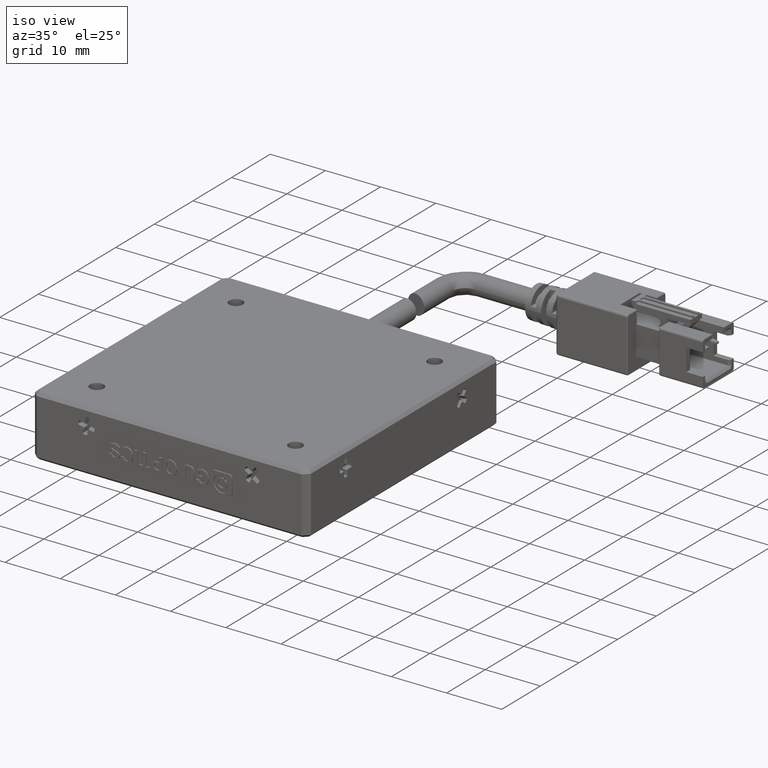
[diagram: clean part render]
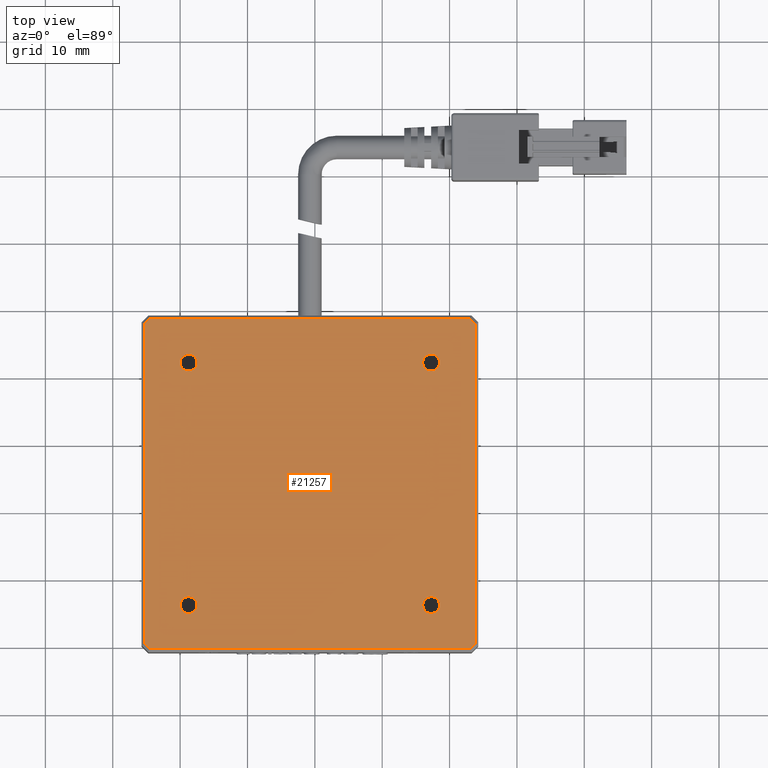
[diagram: tour spotlight — one face highlighted and labeled with its STEP entity id]
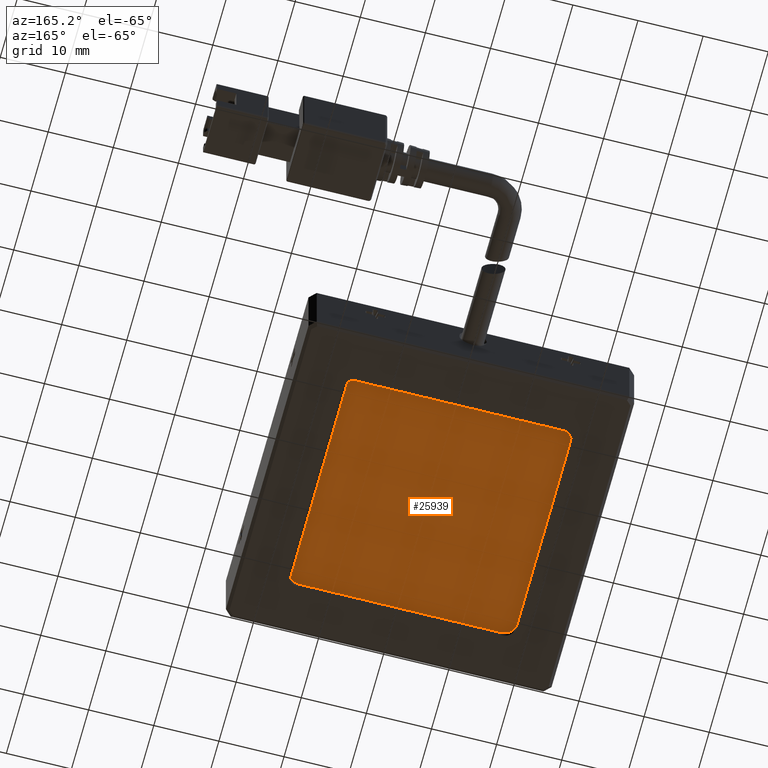
[diagram: tour spotlight — one face highlighted and labeled with its STEP entity id]
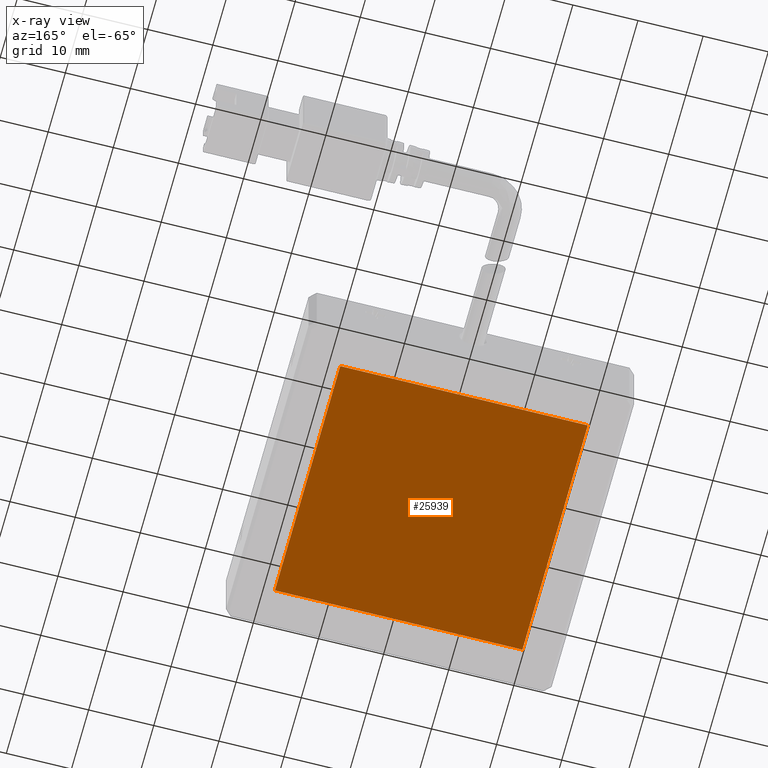
[diagram: x-ray of the same camera — body ghosted, this tour face saturated]
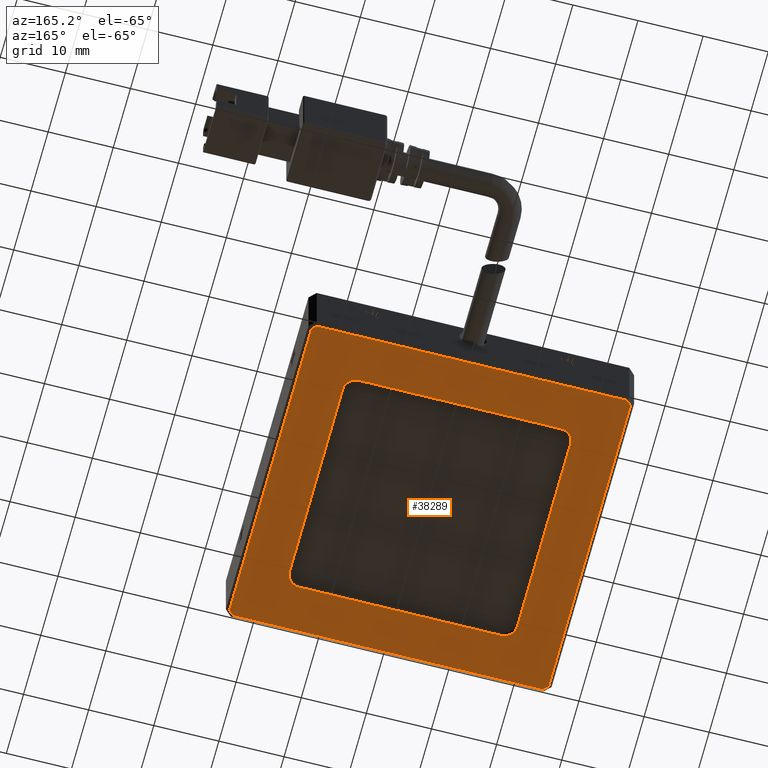
[diagram: tour spotlight — one face highlighted and labeled with its STEP entity id]
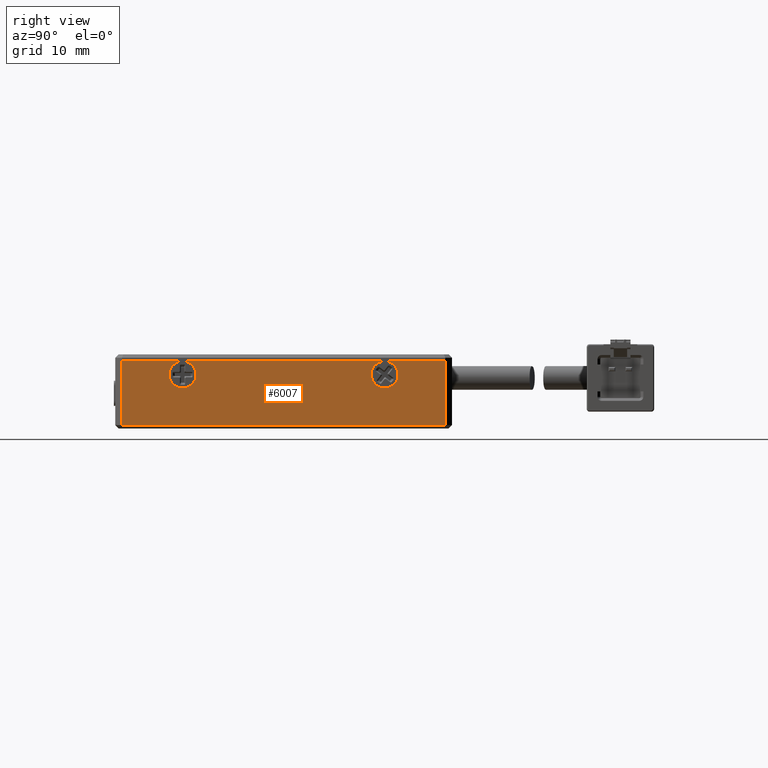
[diagram: tour spotlight — one face highlighted and labeled with its STEP entity id]
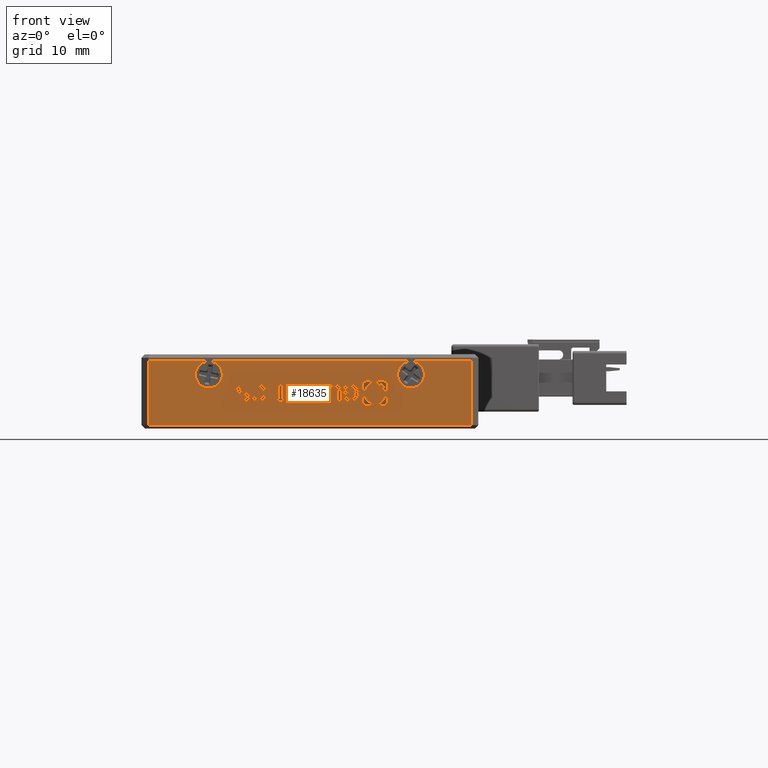
[diagram: tour spotlight — one face highlighted and labeled with its STEP entity id]
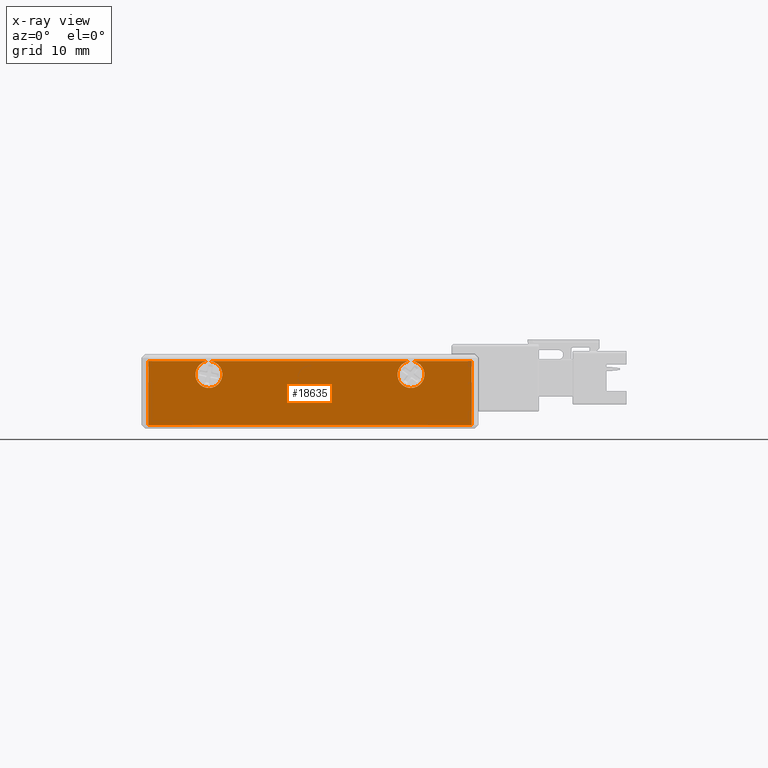
[diagram: x-ray of the same camera — body ghosted, this tour face saturated]
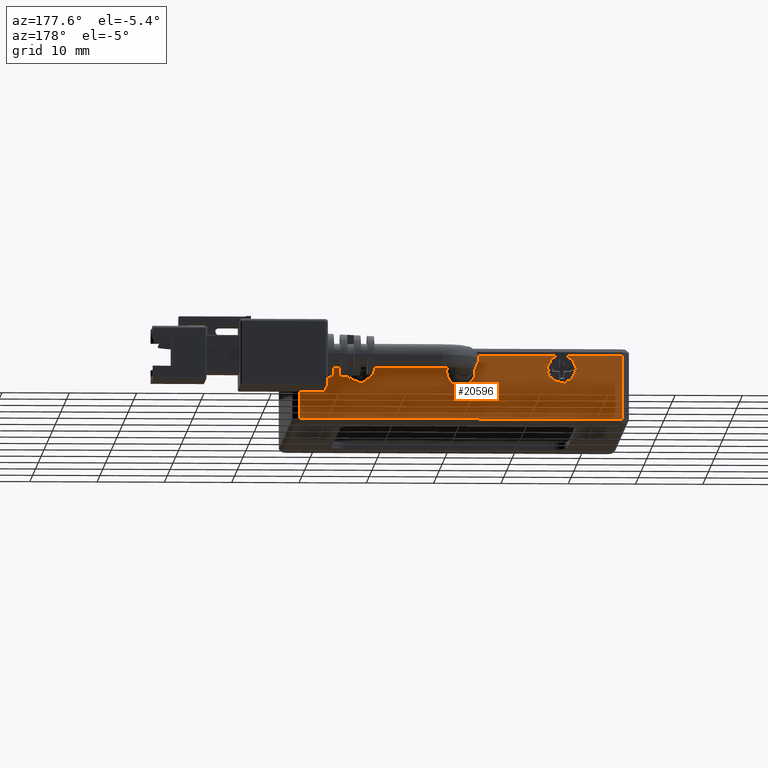
[diagram: tour spotlight — one face highlighted and labeled with its STEP entity id]
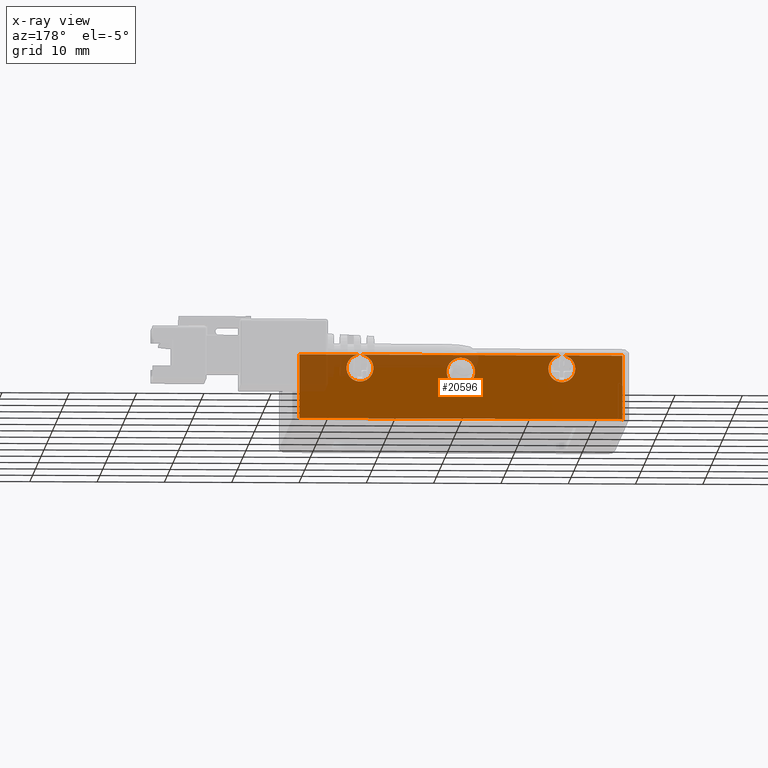
[diagram: x-ray of the same camera — body ghosted, this tour face saturated]
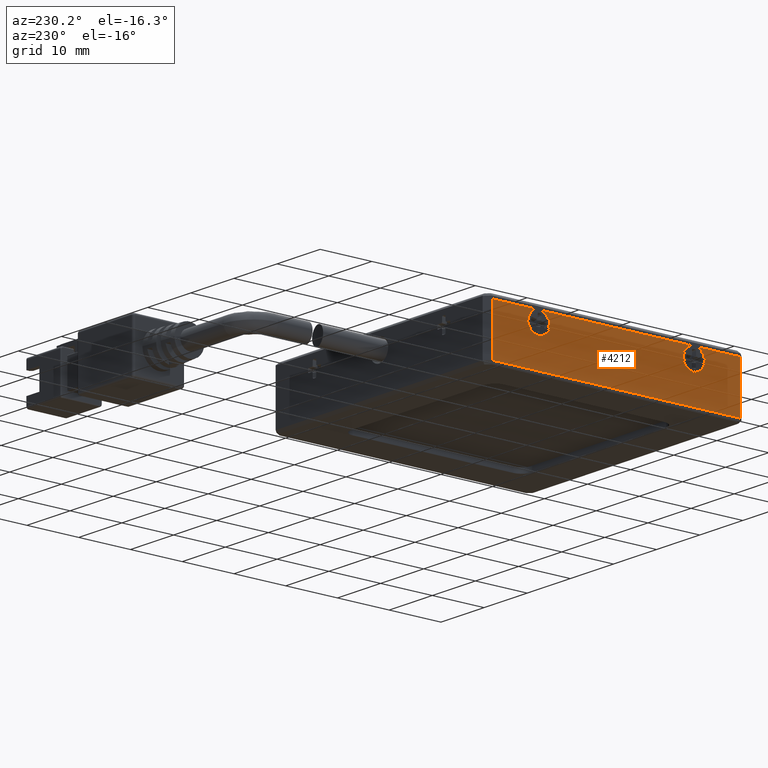
[diagram: tour spotlight — one face highlighted and labeled with its STEP entity id]
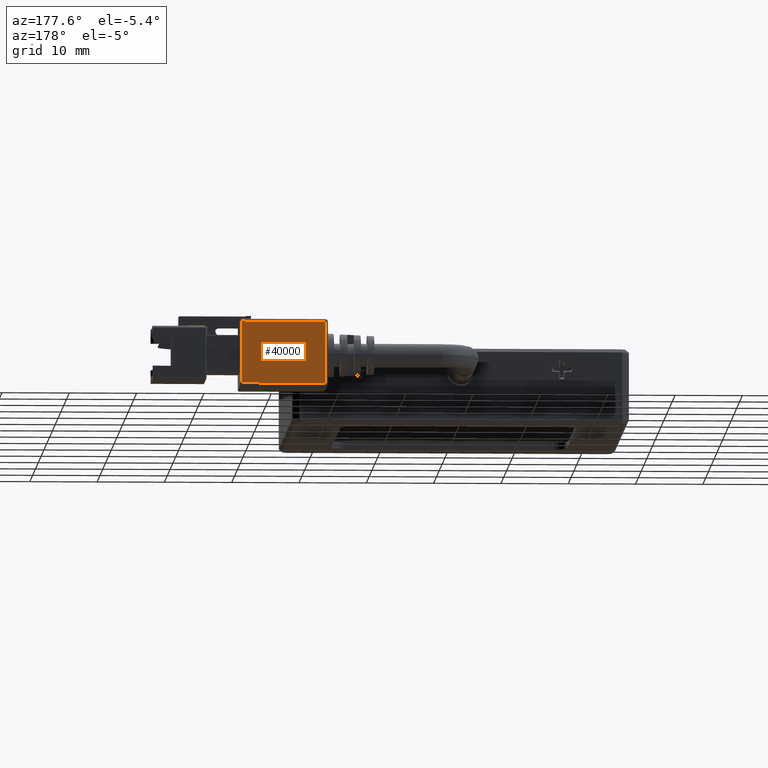
[diagram: tour spotlight — one face highlighted and labeled with its STEP entity id]
A machine part: a face-by-face anatomy tour. The part has 955 B-rep faces; the first image is the clean iso view, then the 8 largest visible faces are spotlighted one at a time (largest first), each with its STEP entity span.

Face 1 — top view, entity #21257. In plain terms, the highlighted planar face has unit normal (0, 0, -1).
Definition (entity closure, byte-faithful):
#299 = DIRECTION ( 'NONE',  ( 1.000000000000000000, 0.0000000000000000000, 0.0000000000000000000 ) ) ;
#845 = AXIS2_PLACEMENT_3D ( 'NONE', #7160, #29972, #10400 ) ;
#1086 = ORIENTED_EDGE ( 'NONE', *, *, #32000, .F. ) ;
#1340 = VERTEX_POINT ( 'NONE', #41055 ) ;
#1426 = ORIENTED_EDGE ( 'NONE', *, *, #33467, .F. ) ;
#1919 = EDGE_CURVE ( 'NONE', #29486, #24143, #15159, .T. ) ;
#1959 = FACE_BOUND ( 'NONE', #10556, .T. ) ;
#2092 = VECTOR ( 'NONE', #4642, 1000.000000000000000 ) ;
#2177 = EDGE_CURVE ( 'NONE', #30785, #22500, #7471, .T. ) ;
#2412 = VECTOR ( 'NONE', #23157, 1000.000000000000000 ) ;
#2557 = EDGE_CURVE ( 'NONE', #39503, #38429, #30887, .T. ) ;
#2893 = CARTESIAN_POINT ( 'NONE',  ( 1.267025316455710400, -3.788860759493669000, 2.250000000000000900 ) ) ;
#3795 = CIRCLE ( 'NONE', #11375, 1.250000000000001100 ) ;
#4642 = DIRECTION ( 'NONE',  ( 1.000000000000000000, -0.0000000000000000000, 0.0000000000000000000 ) ) ;
#4876 = VECTOR ( 'NONE', #30156, 999.9999999999998900 ) ;
#5309 = DIRECTION ( 'NONE',  ( 0.7071067811865441300, -0.7071067811865510100, 0.0000000000000000000 ) ) ;
#5419 = CARTESIAN_POINT ( 'NONE',  ( 0.01702531645570923300, 32.21113924050634100, 2.250000000000000900 ) ) ;
#5454 = CARTESIAN_POINT ( 'NONE',  ( 43.05991853526914800, 38.71113924050632000, 2.250000000000000900 ) ) ;
#5953 = ORIENTED_EDGE ( 'NONE', *, *, #12001, .F. ) ;
#6107 = DIRECTION ( 'NONE',  ( 1.000000000000000000, 0.0000000000000000000, 0.0000000000000000000 ) ) ;
#6492 = VECTOR ( 'NONE', #32009, 999.9999999999998900 ) ;
#7160 = CARTESIAN_POINT ( 'NONE',  ( 37.26702531645571500, 32.21113924050634100, 2.250000000000000900 ) ) ;
#7240 = CARTESIAN_POINT ( 'NONE',  ( 36.01702531645571500, -3.788860759493665900, 2.250000000000000900 ) ) ;
#7456 = DIRECTION ( 'NONE',  ( -0.0000000000000000000, -1.000000000000000000, -0.0000000000000000000 ) ) ;
#7471 = CIRCLE ( 'NONE', #845, 1.250000000000001100 ) ;
#7502 = VERTEX_POINT ( 'NONE', #7240 ) ;
#7522 = LINE ( 'NONE', #23568, #23870 ) ;
#7631 = CARTESIAN_POINT ( 'NONE',  ( -4.525867902357719100, 38.71113924050632000, 2.250000000000000000 ) ) ;
#8006 = EDGE_CURVE ( 'NONE', #38429, #29486, #10196, .T. ) ;
#8092 = ORIENTED_EDGE ( 'NONE', *, *, #27162, .F. ) ;
#8764 = CIRCLE ( 'NONE', #15487, 1.250000000000001100 ) ;
#8786 = EDGE_LOOP ( 'NONE', ( #1426, #28579 ) ) ;
#8949 = DIRECTION ( 'NONE',  ( -0.0000000000000000000, -0.0000000000000000000, 1.000000000000000000 ) ) ;
#9643 = EDGE_CURVE ( 'NONE', #1340, #39503, #11014, .T. ) ;
#9931 = CARTESIAN_POINT ( 'NONE',  ( -4.525867902357729700, -10.28886075949365000, 2.250000000000000900 ) ) ;
#9991 = VECTOR ( 'NONE', #5309, 1000.000000000000000 ) ;
#10196 = LINE ( 'NONE', #33437, #18913 ) ;
#10220 = ORIENTED_EDGE ( 'NONE', *, *, #12545, .F. ) ;
#10400 = DIRECTION ( 'NONE',  ( 1.000000000000000000, 0.0000000000000000000, 0.0000000000000000000 ) ) ;
#10556 = EDGE_LOOP ( 'NONE', ( #11948, #20104 ) ) ;
#10560 = FACE_BOUND ( 'NONE', #19051, .T. ) ;
#10593 = DIRECTION ( 'NONE',  ( 0.0000000000000000000, 1.000000000000000000, 0.0000000000000000000 ) ) ;
#11014 = LINE ( 'NONE', #19757, #2412 ) ;
#11244 = VECTOR ( 'NONE', #7456, 1000.000000000000000 ) ;
#11324 = VERTEX_POINT ( 'NONE', #22914 ) ;
#11375 = AXIS2_PLACEMENT_3D ( 'NONE', #2893, #25653, #6107 ) ;
#11948 = ORIENTED_EDGE ( 'NONE', *, *, #2177, .F. ) ;
#12001 = EDGE_CURVE ( 'NONE', #23423, #1340, #7522, .T. ) ;
#12247 = EDGE_CURVE ( 'NONE', #31761, #33906, #36053, .T. ) ;
#12545 = EDGE_CURVE ( 'NONE', #11324, #7502, #37527, .T. ) ;
#12702 = VERTEX_POINT ( 'NONE', #5419 ) ;
#12726 = EDGE_CURVE ( 'NONE', #12702, #19302, #36458, .T. ) ;
#12907 = CARTESIAN_POINT ( 'NONE',  ( 1.267025316455710400, -3.788860759493669000, 2.250000000000000900 ) ) ;
#12976 = AXIS2_PLACEMENT_3D ( 'NONE', #34602, #15035, #37864 ) ;
#13348 = EDGE_LOOP ( 'NONE', ( #17445, #37914, #5953, #20002, #26273, #14874, #36523, #37977 ) ) ;
#13838 = DIRECTION ( 'NONE',  ( -0.7071067811865510100, -0.7071067811865441300, 0.0000000000000000000 ) ) ;
#14184 = CARTESIAN_POINT ( 'NONE',  ( 0.01702531645570923300, -3.788860759493669000, 2.250000000000000900 ) ) ;
#14874 = ORIENTED_EDGE ( 'NONE', *, *, #16143, .F. ) ;
#15002 = EDGE_CURVE ( 'NONE', #24109, #18387, #37435, .T. ) ;
#15008 = CARTESIAN_POINT ( 'NONE',  ( 38.51702531645572200, 32.21113924050634100, 2.250000000000000900 ) ) ;
#15035 = DIRECTION ( 'NONE',  ( 0.0000000000000000000, 0.0000000000000000000, -1.000000000000000000 ) ) ;
#15159 = LINE ( 'NONE', #38383, #6492 ) ;
#15487 = AXIS2_PLACEMENT_3D ( 'NONE', #19055, #41805, #22338 ) ;
#16143 = EDGE_CURVE ( 'NONE', #24143, #31761, #19378, .T. ) ;
#16167 = DIRECTION ( 'NONE',  ( 1.000000000000000000, 0.0000000000000000000, 0.0000000000000000000 ) ) ;
#16208 = EDGE_LOOP ( 'NONE', ( #8092, #18786 ) ) ;
#16923 = DIRECTION ( 'NONE',  ( -0.0000000000000000000, -0.0000000000000000000, 1.000000000000000000 ) ) ;
#17013 = CARTESIAN_POINT ( 'NONE',  ( -5.232974683544267900, -9.581753978307105500, 2.250000000000001800 ) ) ;
#17159 = DIRECTION ( 'NONE',  ( -0.0000000000000000000, -0.0000000000000000000, 1.000000000000000000 ) ) ;
#17297 = CARTESIAN_POINT ( 'NONE',  ( 43.76702531645570800, 14.21113924050633600, 2.250000000000000900 ) ) ;
#17445 = ORIENTED_EDGE ( 'NONE', *, *, #2557, .F. ) ;
#18172 = PLANE ( 'NONE',  #12976 ) ;
#18387 = VERTEX_POINT ( 'NONE', #40819 ) ;
#18786 = ORIENTED_EDGE ( 'NONE', *, *, #15002, .F. ) ;
#18913 = VECTOR ( 'NONE', #10593, 1000.000000000000000 ) ;
#19051 = EDGE_LOOP ( 'NONE', ( #10220, #1086 ) ) ;
#19055 = CARTESIAN_POINT ( 'NONE',  ( 37.26702531645571500, -3.788860759493665900, 2.250000000000000900 ) ) ;
#19257 = FACE_OUTER_BOUND ( 'NONE', #13348, .T. ) ;
#19302 = VERTEX_POINT ( 'NONE', #33384 ) ;
#19378 = LINE ( 'NONE', #27447, #2092 ) ;
#19757 = CARTESIAN_POINT ( 'NONE',  ( 19.26702531645571500, -10.28886075949365300, 2.250000000000000900 ) ) ;
#19779 = DIRECTION ( 'NONE',  ( -0.0000000000000000000, -0.0000000000000000000, 1.000000000000000000 ) ) ;
#20002 = ORIENTED_EDGE ( 'NONE', *, *, #35084, .F. ) ;
#20104 = ORIENTED_EDGE ( 'NONE', *, *, #32157, .F. ) ;
#20284 = FACE_BOUND ( 'NONE', #16208, .T. ) ;
#21257 = ADVANCED_FACE ( 'NONE', ( #19257, #20284, #10560, #1959, #36615 ), #18172, .F. ) ;
#22338 = DIRECTION ( 'NONE',  ( 1.000000000000000000, 0.0000000000000000000, 0.0000000000000000000 ) ) ;
#22364 = CARTESIAN_POINT ( 'NONE',  ( 36.01702531645571500, 32.21113924050634100, 2.250000000000000900 ) ) ;
#22500 = VERTEX_POINT ( 'NONE', #22364 ) ;
#22685 = CARTESIAN_POINT ( 'NONE',  ( 43.76702531645570800, -9.581753978307098400, 2.250000000000000000 ) ) ;
#22914 = CARTESIAN_POINT ( 'NONE',  ( 38.51702531645572200, -3.788860759493665900, 2.250000000000000900 ) ) ;
#22995 = CARTESIAN_POINT ( 'NONE',  ( -5.232974683544267900, 38.00403245931977400, 2.250000000000000000 ) ) ;
#23157 = DIRECTION ( 'NONE',  ( -1.000000000000000000, 0.0000000000000000000, -0.0000000000000000000 ) ) ;
#23423 = VERTEX_POINT ( 'NONE', #22685 ) ;
#23568 = CARTESIAN_POINT ( 'NONE',  ( 43.76702531645570800, -9.581753978307098400, 2.250000000000000900 ) ) ;
#23870 = VECTOR ( 'NONE', #13838, 1000.000000000000000 ) ;
#24109 = VERTEX_POINT ( 'NONE', #14184 ) ;
#24143 = VERTEX_POINT ( 'NONE', #7631 ) ;
#24202 = AXIS2_PLACEMENT_3D ( 'NONE', #28517, #8949, #31788 ) ;
#25653 = DIRECTION ( 'NONE',  ( -0.0000000000000000000, -0.0000000000000000000, 1.000000000000000000 ) ) ;
#26273 = ORIENTED_EDGE ( 'NONE', *, *, #12247, .F. ) ;
#26828 = CARTESIAN_POINT ( 'NONE',  ( 43.76702531645570800, 38.00403245931975200, 2.250000000000001800 ) ) ;
#26870 = CARTESIAN_POINT ( 'NONE',  ( -4.525867902357726200, -10.28886075949365300, 2.250000000000000900 ) ) ;
#27162 = EDGE_CURVE ( 'NONE', #18387, #24109, #3795, .T. ) ;
#27447 = CARTESIAN_POINT ( 'NONE',  ( 19.26702531645571500, 38.71113924050632000, 2.250000000000000900 ) ) ;
#27790 = CARTESIAN_POINT ( 'NONE',  ( 43.05991853526914800, 38.71113924050632000, 2.250000000000001800 ) ) ;
#28517 = CARTESIAN_POINT ( 'NONE',  ( 1.267025316455706800, 32.21113924050634100, 2.250000000000000900 ) ) ;
#28579 = ORIENTED_EDGE ( 'NONE', *, *, #12726, .F. ) ;
#29486 = VERTEX_POINT ( 'NONE', #22995 ) ;
#29972 = DIRECTION ( 'NONE',  ( -0.0000000000000000000, -0.0000000000000000000, 1.000000000000000000 ) ) ;
#30156 = DIRECTION ( 'NONE',  ( -0.7071067811865441300, 0.7071067811865510100, 0.0000000000000000000 ) ) ;
#30785 = VERTEX_POINT ( 'NONE', #15008 ) ;
#30887 = LINE ( 'NONE', #26870, #4876 ) ;
#31761 = VERTEX_POINT ( 'NONE', #27790 ) ;
#31788 = DIRECTION ( 'NONE',  ( 1.000000000000000000, 0.0000000000000000000, 0.0000000000000000000 ) ) ;
#32000 = EDGE_CURVE ( 'NONE', #7502, #11324, #8764, .T. ) ;
#32009 = DIRECTION ( 'NONE',  ( 0.7071067811865510100, 0.7071067811865441300, 0.0000000000000000000 ) ) ;
#32157 = EDGE_CURVE ( 'NONE', #22500, #30785, #32229, .T. ) ;
#32229 = CIRCLE ( 'NONE', #41680, 1.250000000000001100 ) ;
#33384 = CARTESIAN_POINT ( 'NONE',  ( 2.517025316455704600, 32.21113924050634100, 2.250000000000000900 ) ) ;
#33437 = CARTESIAN_POINT ( 'NONE',  ( -5.232974683544267900, 14.21113924050633600, 2.250000000000000900 ) ) ;
#33467 = EDGE_CURVE ( 'NONE', #19302, #12702, #37095, .T. ) ;
#33906 = VERTEX_POINT ( 'NONE', #26828 ) ;
#34443 = AXIS2_PLACEMENT_3D ( 'NONE', #36736, #17159, #39955 ) ;
#34602 = CARTESIAN_POINT ( 'NONE',  ( 19.26702531645571500, 14.21113924050633600, 2.250000000000000900 ) ) ;
#35084 = EDGE_CURVE ( 'NONE', #33906, #23423, #36243, .T. ) ;
#35719 = DIRECTION ( 'NONE',  ( -0.0000000000000000000, -0.0000000000000000000, 1.000000000000000000 ) ) ;
#36053 = LINE ( 'NONE', #5454, #9991 ) ;
#36243 = LINE ( 'NONE', #17297, #11244 ) ;
#36458 = CIRCLE ( 'NONE', #24202, 1.249999999999997600 ) ;
#36487 = CARTESIAN_POINT ( 'NONE',  ( 37.26702531645571500, -3.788860759493665900, 2.250000000000000900 ) ) ;
#36523 = ORIENTED_EDGE ( 'NONE', *, *, #1919, .F. ) ;
#36615 = FACE_BOUND ( 'NONE', #8786, .T. ) ;
#36736 = CARTESIAN_POINT ( 'NONE',  ( 1.267025316455706800, 32.21113924050634100, 2.250000000000000900 ) ) ;
#37095 = CIRCLE ( 'NONE', #34443, 1.249999999999997600 ) ;
#37435 = CIRCLE ( 'NONE', #40840, 1.250000000000001100 ) ;
#37527 = CIRCLE ( 'NONE', #38902, 1.250000000000001100 ) ;
#37864 = DIRECTION ( 'NONE',  ( -1.000000000000000000, 0.0000000000000000000, -0.0000000000000000000 ) ) ;
#37914 = ORIENTED_EDGE ( 'NONE', *, *, #9643, .F. ) ;
#37977 = ORIENTED_EDGE ( 'NONE', *, *, #8006, .F. ) ;
#38383 = CARTESIAN_POINT ( 'NONE',  ( -5.232974683544267900, 38.00403245931977400, 2.250000000000000900 ) ) ;
#38429 = VERTEX_POINT ( 'NONE', #17013 ) ;
#38902 = AXIS2_PLACEMENT_3D ( 'NONE', #36487, #16923, #39725 ) ;
#39274 = CARTESIAN_POINT ( 'NONE',  ( 37.26702531645571500, 32.21113924050634100, 2.250000000000000900 ) ) ;
#39503 = VERTEX_POINT ( 'NONE', #9931 ) ;
#39725 = DIRECTION ( 'NONE',  ( 1.000000000000000000, 0.0000000000000000000, 0.0000000000000000000 ) ) ;
#39955 = DIRECTION ( 'NONE',  ( 1.000000000000000000, 0.0000000000000000000, 0.0000000000000000000 ) ) ;
#40819 = CARTESIAN_POINT ( 'NONE',  ( 2.517025316455711300, -3.788860759493669000, 2.250000000000000900 ) ) ;
#40840 = AXIS2_PLACEMENT_3D ( 'NONE', #12907, #35719, #16167 ) ;
#41055 = CARTESIAN_POINT ( 'NONE',  ( 43.05991853526914100, -10.28886075949365300, 2.250000000000000000 ) ) ;
#41680 = AXIS2_PLACEMENT_3D ( 'NONE', #39274, #19779, #299 ) ;
#41805 = DIRECTION ( 'NONE',  ( -0.0000000000000000000, -0.0000000000000000000, 1.000000000000000000 ) ) ;

Face 2 — auxiliary view, entity #25939. An x-ray twin of the same camera follows (body ghosted, this face saturated) — the face is partly hidden behind the body. In plain terms, the highlighted planar face has unit normal (0, 0, -1).
Definition (entity closure, byte-faithful):
#563 = DIRECTION ( 'NONE',  ( -0.0000000000000000000, -1.000000000000000000, 0.0000000000000000000 ) ) ;
#1792 = LINE ( 'NONE', #2114, #35414 ) ;
#2114 = CARTESIAN_POINT ( 'NONE',  ( -0.06796260940836185100, -5.288860759493659600, -7.549999999999995400 ) ) ;
#2786 = EDGE_CURVE ( 'NONE', #39879, #37913, #1792, .T. ) ;
#3182 = CARTESIAN_POINT ( 'NONE',  ( 37.93203739059163800, 32.71113924050633400, -7.549999999999995400 ) ) ;
#3196 = EDGE_LOOP ( 'NONE', ( #3330, #24445, #34177, #17902 ) ) ;
#3330 = ORIENTED_EDGE ( 'NONE', *, *, #2786, .T. ) ;
#3716 = VECTOR ( 'NONE', #29119, 1000.000000000000000 ) ;
#4961 = CARTESIAN_POINT ( 'NONE',  ( 18.93203739059163800, 13.71113924050633900, -7.549999999999995400 ) ) ;
#5294 = LINE ( 'NONE', #16721, #19575 ) ;
#5337 = DIRECTION ( 'NONE',  ( -0.0000000000000000000, 1.000000000000000000, 0.0000000000000000000 ) ) ;
#8086 = PLANE ( 'NONE',  #16474 ) ;
#8226 = DIRECTION ( 'NONE',  ( -1.000000000000000000, 0.0000000000000000000, -0.0000000000000000000 ) ) ;
#8509 = DIRECTION ( 'NONE',  ( 1.000000000000000000, 0.0000000000000000000, 0.0000000000000000000 ) ) ;
#9268 = VECTOR ( 'NONE', #8509, 1000.000000000000000 ) ;
#12920 = CARTESIAN_POINT ( 'NONE',  ( -0.06796260940836185100, -5.288860759493659600, -7.549999999999995400 ) ) ;
#13269 = VERTEX_POINT ( 'NONE', #3182 ) ;
#14910 = CARTESIAN_POINT ( 'NONE',  ( -0.06796260940836185100, 32.71113924050633400, -7.549999999999995400 ) ) ;
#15144 = EDGE_CURVE ( 'NONE', #13269, #29782, #5294, .T. ) ;
#16474 = AXIS2_PLACEMENT_3D ( 'NONE', #4961, #27775, #8226 ) ;
#16721 = CARTESIAN_POINT ( 'NONE',  ( 37.93203739059163800, -5.288860759493659600, -7.549999999999995400 ) ) ;
#17902 = ORIENTED_EDGE ( 'NONE', *, *, #25596, .T. ) ;
#19575 = VECTOR ( 'NONE', #563, 1000.000000000000000 ) ;
#21548 = CARTESIAN_POINT ( 'NONE',  ( 37.93203739059163800, -5.288860759493659600, -7.549999999999995400 ) ) ;
#24043 = FACE_OUTER_BOUND ( 'NONE', #3196, .T. ) ;
#24445 = ORIENTED_EDGE ( 'NONE', *, *, #34675, .T. ) ;
#25596 = EDGE_CURVE ( 'NONE', #29782, #39879, #29722, .T. ) ;
#25798 = CARTESIAN_POINT ( 'NONE',  ( -0.06796260940836185100, -5.288860759493659600, -7.549999999999995400 ) ) ;
#25939 = ADVANCED_FACE ( 'NONE', ( #24043 ), #8086, .T. ) ;
#27775 = DIRECTION ( 'NONE',  ( 0.0000000000000000000, 0.0000000000000000000, -1.000000000000000000 ) ) ;
#29119 = DIRECTION ( 'NONE',  ( -1.000000000000000000, -0.0000000000000000000, 0.0000000000000000000 ) ) ;
#29722 = LINE ( 'NONE', #25798, #3716 ) ;
#29782 = VERTEX_POINT ( 'NONE', #21548 ) ;
#34177 = ORIENTED_EDGE ( 'NONE', *, *, #15144, .T. ) ;
#34675 = EDGE_CURVE ( 'NONE', #37913, #13269, #36310, .T. ) ;
#35414 = VECTOR ( 'NONE', #5337, 1000.000000000000000 ) ;
#36310 = LINE ( 'NONE', #14910, #9268 ) ;
#37190 = CARTESIAN_POINT ( 'NONE',  ( -0.06796260940836185100, 32.71113924050633400, -7.549999999999995400 ) ) ;
#37913 = VERTEX_POINT ( 'NONE', #37190 ) ;
#39879 = VERTEX_POINT ( 'NONE', #12920 ) ;

Face 3 — auxiliary view, entity #38289. In plain terms, the highlighted planar face has unit normal (0, 0, -1).
Definition (entity closure, byte-faithful):
#114 = DIRECTION ( 'NONE',  ( 0.7071067811865526800, 0.7071067811865423500, 0.0000000000000000000 ) ) ;
#195 = DIRECTION ( 'NONE',  ( -0.0000000000000000000, -0.0000000000000000000, 1.000000000000000000 ) ) ;
#292 = ORIENTED_EDGE ( 'NONE', *, *, #36709, .T. ) ;
#522 = LINE ( 'NONE', #2817, #34131 ) ;
#704 = VERTEX_POINT ( 'NONE', #13249 ) ;
#754 = CIRCLE ( 'NONE', #25283, 2.000000000000001800 ) ;
#853 = VERTEX_POINT ( 'NONE', #10960 ) ;
#1664 = CARTESIAN_POINT ( 'NONE',  ( -4.525867902357719100, 38.71113924050632700, -8.750000000000000000 ) ) ;
#1958 = ORIENTED_EDGE ( 'NONE', *, *, #38871, .T. ) ;
#2655 = CARTESIAN_POINT ( 'NONE',  ( 1.767025316455714400, -1.288860759493677400, -8.750000000000000000 ) ) ;
#2688 = VERTEX_POINT ( 'NONE', #1664 ) ;
#2817 = CARTESIAN_POINT ( 'NONE',  ( 43.05991853526917600, 38.71113924050632700, -8.750000000000000000 ) ) ;
#3797 = AXIS2_PLACEMENT_3D ( 'NONE', #33680, #14107, #36944 ) ;
#4020 = LINE ( 'NONE', #33239, #7061 ) ;
#4418 = ORIENTED_EDGE ( 'NONE', *, *, #15779, .T. ) ;
#4567 = EDGE_CURVE ( 'NONE', #26002, #17726, #34921, .T. ) ;
#4962 = AXIS2_PLACEMENT_3D ( 'NONE', #7744, #30565, #11022 ) ;
#5682 = VERTEX_POINT ( 'NONE', #19528 ) ;
#5719 = EDGE_CURVE ( 'NONE', #8596, #17413, #34788, .T. ) ;
#5809 = ORIENTED_EDGE ( 'NONE', *, *, #5719, .T. ) ;
#6015 = VECTOR ( 'NONE', #8465, 1000.000000000000000 ) ;
#6300 = LINE ( 'NONE', #39079, #31317 ) ;
#6421 = FACE_OUTER_BOUND ( 'NONE', #10066, .T. ) ;
#6865 = ORIENTED_EDGE ( 'NONE', *, *, #17334, .T. ) ;
#6955 = CARTESIAN_POINT ( 'NONE',  ( -4.525867902357740400, -10.28886075949366900, -8.750000000000000000 ) ) ;
#7061 = VECTOR ( 'NONE', #10545, 1000.000000000000000 ) ;
#7350 = EDGE_CURVE ( 'NONE', #24652, #27761, #754, .T. ) ;
#7433 = CARTESIAN_POINT ( 'NONE',  ( 36.76702531645571500, 29.71113924050632700, -8.750000000000000000 ) ) ;
#7744 = CARTESIAN_POINT ( 'NONE',  ( 34.76702531645571500, -1.288860759493677400, -8.750000000000000000 ) ) ;
#7947 = CARTESIAN_POINT ( 'NONE',  ( 43.76702531645572200, -9.581753978307132200, -8.750000000000000000 ) ) ;
#8015 = EDGE_CURVE ( 'NONE', #19934, #704, #23488, .T. ) ;
#8434 = EDGE_CURVE ( 'NONE', #29340, #8856, #522, .T. ) ;
#8465 = DIRECTION ( 'NONE',  ( -1.000000000000000000, 0.0000000000000000000, -0.0000000000000000000 ) ) ;
#8596 = VERTEX_POINT ( 'NONE', #26127 ) ;
#8615 = LINE ( 'NONE', #34543, #25949 ) ;
#8856 = VERTEX_POINT ( 'NONE', #40615 ) ;
#8953 = EDGE_CURVE ( 'NONE', #27346, #5682, #8615, .T. ) ;
#9167 = CARTESIAN_POINT ( 'NONE',  ( 43.05991853526919800, 38.71113924050632700, -8.749999999999998200 ) ) ;
#9231 = DIRECTION ( 'NONE',  ( -0.0000000000000000000, -0.0000000000000000000, 1.000000000000000000 ) ) ;
#9754 = CARTESIAN_POINT ( 'NONE',  ( 19.26702531645572200, 14.21113924050632300, -8.750000000000000000 ) ) ;
#10066 = EDGE_LOOP ( 'NONE', ( #13526, #1958, #11747, #22092, #6865, #40114, #17971, #24315 ) ) ;
#10538 = ORIENTED_EDGE ( 'NONE', *, *, #23808, .T. ) ;
#10545 = DIRECTION ( 'NONE',  ( 1.000000000000000000, -0.0000000000000000000, 0.0000000000000000000 ) ) ;
#10960 = CARTESIAN_POINT ( 'NONE',  ( 3.767025316455714400, -3.288860759493677400, -8.750000000000000000 ) ) ;
#11022 = DIRECTION ( 'NONE',  ( -1.000000000000000000, 0.0000000000000000000, 0.0000000000000000000 ) ) ;
#11291 = LINE ( 'NONE', #22949, #36291 ) ;
#11503 = DIRECTION ( 'NONE',  ( -0.0000000000000000000, -1.000000000000000000, -0.0000000000000000000 ) ) ;
#11622 = CARTESIAN_POINT ( 'NONE',  ( 19.26702531645572200, 31.71113924050632300, -8.750000000000000000 ) ) ;
#11664 = CARTESIAN_POINT ( 'NONE',  ( 34.76702531645571500, -3.288860759493677400, -8.750000000000000000 ) ) ;
#11747 = ORIENTED_EDGE ( 'NONE', *, *, #16575, .T. ) ;
#12333 = AXIS2_PLACEMENT_3D ( 'NONE', #9754, #32615, #13056 ) ;
#13056 = DIRECTION ( 'NONE',  ( -1.000000000000000000, 0.0000000000000000000, -0.0000000000000000000 ) ) ;
#13249 = CARTESIAN_POINT ( 'NONE',  ( -5.232974683544277600, -9.581753978307125100, -8.750000000000000000 ) ) ;
#13526 = ORIENTED_EDGE ( 'NONE', *, *, #39766, .T. ) ;
#13819 = VERTEX_POINT ( 'NONE', #39266 ) ;
#14084 = EDGE_CURVE ( 'NONE', #27761, #8596, #14664, .T. ) ;
#14107 = DIRECTION ( 'NONE',  ( -0.0000000000000000000, -0.0000000000000000000, 1.000000000000000000 ) ) ;
#14664 = LINE ( 'NONE', #11622, #6015 ) ;
#14768 = DIRECTION ( 'NONE',  ( 0.0000000000000000000, 1.000000000000000000, 0.0000000000000000000 ) ) ;
#14899 = CARTESIAN_POINT ( 'NONE',  ( 19.26702531645572200, -3.288860759493677400, -8.750000000000000000 ) ) ;
#15584 = LINE ( 'NONE', #38171, #32959 ) ;
#15779 = EDGE_CURVE ( 'NONE', #853, #26002, #28607, .T. ) ;
#16575 = EDGE_CURVE ( 'NONE', #2688, #29340, #4020, .T. ) ;
#17004 = VECTOR ( 'NONE', #18948, 1000.000000000000000 ) ;
#17148 = DIRECTION ( 'NONE',  ( -0.7071067811865441300, 0.7071067811865510100, 0.0000000000000000000 ) ) ;
#17334 = EDGE_CURVE ( 'NONE', #8856, #27346, #40524, .T. ) ;
#17413 = VERTEX_POINT ( 'NONE', #18904 ) ;
#17726 = VERTEX_POINT ( 'NONE', #30687 ) ;
#17971 = ORIENTED_EDGE ( 'NONE', *, *, #40716, .T. ) ;
#18043 = LINE ( 'NONE', #41702, #17004 ) ;
#18436 = ORIENTED_EDGE ( 'NONE', *, *, #14084, .T. ) ;
#18649 = DIRECTION ( 'NONE',  ( 0.0000000000000000000, 1.000000000000000000, 0.0000000000000000000 ) ) ;
#18882 = VECTOR ( 'NONE', #37733, 1000.000000000000000 ) ;
#18904 = CARTESIAN_POINT ( 'NONE',  ( 1.767025316455714400, 29.71113924050632300, -8.750000000000000000 ) ) ;
#18948 = DIRECTION ( 'NONE',  ( -0.0000000000000000000, -1.000000000000000000, -0.0000000000000000000 ) ) ;
#19528 = CARTESIAN_POINT ( 'NONE',  ( 43.05991853526920500, -10.28886075949366600, -8.750000000000003600 ) ) ;
#19672 = CARTESIAN_POINT ( 'NONE',  ( 3.767025316455714400, 29.71113924050632300, -8.750000000000000000 ) ) ;
#19717 = EDGE_CURVE ( 'NONE', #17413, #26697, #18043, .T. ) ;
#19934 = VERTEX_POINT ( 'NONE', #6955 ) ;
#20044 = ORIENTED_EDGE ( 'NONE', *, *, #7350, .T. ) ;
#21740 = FACE_BOUND ( 'NONE', #35590, .T. ) ;
#21953 = VECTOR ( 'NONE', #14768, 1000.000000000000000 ) ;
#22092 = ORIENTED_EDGE ( 'NONE', *, *, #8434, .T. ) ;
#22297 = DIRECTION ( 'NONE',  ( 0.7071067811865441300, -0.7071067811865510100, 0.0000000000000000000 ) ) ;
#22507 = AXIS2_PLACEMENT_3D ( 'NONE', #19672, #195, #22936 ) ;
#22936 = DIRECTION ( 'NONE',  ( -1.000000000000000000, 0.0000000000000000000, 0.0000000000000000000 ) ) ;
#22949 = CARTESIAN_POINT ( 'NONE',  ( 19.26702531645572200, -10.28886075949366900, -8.750000000000000000 ) ) ;
#22960 = LINE ( 'NONE', #40844, #21953 ) ;
#23488 = LINE ( 'NONE', #33588, #39770 ) ;
#23808 = EDGE_CURVE ( 'NONE', #17726, #24652, #15584, .T. ) ;
#24315 = ORIENTED_EDGE ( 'NONE', *, *, #8015, .T. ) ;
#24652 = VERTEX_POINT ( 'NONE', #7433 ) ;
#25283 = AXIS2_PLACEMENT_3D ( 'NONE', #28803, #9231, #32087 ) ;
#25541 = ORIENTED_EDGE ( 'NONE', *, *, #4567, .T. ) ;
#25949 = VECTOR ( 'NONE', #37809, 999.9999999999998900 ) ;
#26002 = VERTEX_POINT ( 'NONE', #11664 ) ;
#26127 = CARTESIAN_POINT ( 'NONE',  ( 3.767025316455714400, 31.71113924050632300, -8.750000000000000000 ) ) ;
#26210 = DIRECTION ( 'NONE',  ( -1.000000000000000000, 0.0000000000000000000, -0.0000000000000000000 ) ) ;
#26697 = VERTEX_POINT ( 'NONE', #2655 ) ;
#27346 = VERTEX_POINT ( 'NONE', #7947 ) ;
#27761 = VERTEX_POINT ( 'NONE', #33290 ) ;
#28607 = LINE ( 'NONE', #14899, #18882 ) ;
#28803 = CARTESIAN_POINT ( 'NONE',  ( 34.76702531645571500, 29.71113924050632700, -8.750000000000000000 ) ) ;
#29340 = VERTEX_POINT ( 'NONE', #9167 ) ;
#30565 = DIRECTION ( 'NONE',  ( -0.0000000000000000000, -0.0000000000000000000, 1.000000000000000000 ) ) ;
#30687 = CARTESIAN_POINT ( 'NONE',  ( 36.76702531645571500, -1.288860759493677400, -8.750000000000000000 ) ) ;
#30738 = CARTESIAN_POINT ( 'NONE',  ( 43.76702531645572200, 14.21113924050632300, -8.750000000000000000 ) ) ;
#30764 = CIRCLE ( 'NONE', #3797, 2.000000000000000000 ) ;
#31317 = VECTOR ( 'NONE', #114, 1000.000000000000000 ) ;
#31916 = VECTOR ( 'NONE', #11503, 1000.000000000000000 ) ;
#32087 = DIRECTION ( 'NONE',  ( -1.000000000000000000, 0.0000000000000000000, 0.0000000000000000000 ) ) ;
#32615 = DIRECTION ( 'NONE',  ( 0.0000000000000000000, 0.0000000000000000000, -1.000000000000000000 ) ) ;
#32959 = VECTOR ( 'NONE', #18649, 1000.000000000000000 ) ;
#33239 = CARTESIAN_POINT ( 'NONE',  ( 19.26702531645572200, 38.71113924050632700, -8.750000000000000000 ) ) ;
#33290 = CARTESIAN_POINT ( 'NONE',  ( 34.76702531645571500, 31.71113924050632300, -8.750000000000000000 ) ) ;
#33588 = CARTESIAN_POINT ( 'NONE',  ( -4.525867902357740400, -10.28886075949366900, -8.750000000000000000 ) ) ;
#33680 = CARTESIAN_POINT ( 'NONE',  ( 3.767025316455714400, -1.288860759493677400, -8.750000000000000000 ) ) ;
#34131 = VECTOR ( 'NONE', #22297, 999.9999999999998900 ) ;
#34543 = CARTESIAN_POINT ( 'NONE',  ( 43.76702531645572200, -9.581753978307132200, -8.750000000000000000 ) ) ;
#34788 = CIRCLE ( 'NONE', #22507, 2.000000000000000000 ) ;
#34921 = CIRCLE ( 'NONE', #4962, 2.000000000000001800 ) ;
#35590 = EDGE_LOOP ( 'NONE', ( #37635, #292, #4418, #25541, #10538, #20044, #18436, #5809 ) ) ;
#36291 = VECTOR ( 'NONE', #26210, 1000.000000000000000 ) ;
#36709 = EDGE_CURVE ( 'NONE', #26697, #853, #30764, .T. ) ;
#36944 = DIRECTION ( 'NONE',  ( -1.000000000000000000, 0.0000000000000000000, 0.0000000000000000000 ) ) ;
#37635 = ORIENTED_EDGE ( 'NONE', *, *, #19717, .T. ) ;
#37733 = DIRECTION ( 'NONE',  ( 1.000000000000000000, -0.0000000000000000000, 0.0000000000000000000 ) ) ;
#37809 = DIRECTION ( 'NONE',  ( -0.7071067811865510100, -0.7071067811865441300, 0.0000000000000000000 ) ) ;
#38171 = CARTESIAN_POINT ( 'NONE',  ( 36.76702531645571500, 14.21113924050632300, -8.750000000000000000 ) ) ;
#38289 = ADVANCED_FACE ( 'NONE', ( #21740, #6421 ), #38855, .T. ) ;
#38855 = PLANE ( 'NONE',  #12333 ) ;
#38871 = EDGE_CURVE ( 'NONE', #13819, #2688, #6300, .T. ) ;
#39079 = CARTESIAN_POINT ( 'NONE',  ( -5.232974683544277600, 38.00403245931978100, -8.750000000000000000 ) ) ;
#39266 = CARTESIAN_POINT ( 'NONE',  ( -5.232974683544277600, 38.00403245931980200, -8.749999999999998200 ) ) ;
#39766 = EDGE_CURVE ( 'NONE', #704, #13819, #22960, .T. ) ;
#39770 = VECTOR ( 'NONE', #17148, 999.9999999999998900 ) ;
#40114 = ORIENTED_EDGE ( 'NONE', *, *, #8953, .T. ) ;
#40524 = LINE ( 'NONE', #30738, #31916 ) ;
#40615 = CARTESIAN_POINT ( 'NONE',  ( 43.76702531645572200, 38.00403245931980900, -8.750000000000003600 ) ) ;
#40716 = EDGE_CURVE ( 'NONE', #5682, #19934, #11291, .T. ) ;
#40844 = CARTESIAN_POINT ( 'NONE',  ( -5.232974683544277600, 14.21113924050632300, -8.750000000000000000 ) ) ;
#41702 = CARTESIAN_POINT ( 'NONE',  ( 1.767025316455714400, 14.21113924050632300, -8.750000000000000000 ) ) ;

Face 4 — right view, entity #6007. In plain terms, the highlighted planar face has unit normal (-1, 0, 0).
Definition (entity closure, byte-faithful):
#296 = VERTEX_POINT ( 'NONE', #16741 ) ;
#3088 = VECTOR ( 'NONE', #22927, 1000.000000000000000 ) ;
#3111 = EDGE_CURVE ( 'NONE', #33766, #20109, #33356, .T. ) ;
#3378 = ORIENTED_EDGE ( 'NONE', *, *, #3111, .F. ) ;
#4884 = CARTESIAN_POINT ( 'NONE',  ( 44.26702531643298500, -0.7888607594934131700, -0.7500000000000006700 ) ) ;
#6007 = ADVANCED_FACE ( 'NONE', ( #30644, #22994, #13278 ), #11514, .F. ) ;
#6457 = EDGE_LOOP ( 'NONE', ( #23354, #33188 ) ) ;
#7035 = VECTOR ( 'NONE', #31146, 1000.000000000000000 ) ;
#7301 = CIRCLE ( 'NONE', #33957, 2.000000000028194300 ) ;
#7592 = ORIENTED_EDGE ( 'NONE', *, *, #15072, .F. ) ;
#7794 = CIRCLE ( 'NONE', #38808, 2.000000000066393100 ) ;
#8074 = CARTESIAN_POINT ( 'NONE',  ( 44.26702531641434000, 29.21113924050658300, -0.7500000000000006700 ) ) ;
#8150 = DIRECTION ( 'NONE',  ( 0.0000000000000000000, 0.0000000000000000000, -1.000000000000000000 ) ) ;
#8367 = CARTESIAN_POINT ( 'NONE',  ( 44.26702531645572200, -10.78886075949366900, 1.249999999999999300 ) ) ;
#9186 = CARTESIAN_POINT ( 'NONE',  ( 44.26702531641434000, 27.21113924044019000, -0.7500000000000004400 ) ) ;
#9665 = VERTEX_POINT ( 'NONE', #39660 ) ;
#11349 = DIRECTION ( 'NONE',  ( 0.0000000000000000000, 1.000000000000000000, 0.0000000000000000000 ) ) ;
#11514 = PLANE ( 'NONE',  #38340 ) ;
#11663 = DIRECTION ( 'NONE',  ( 0.0000000000000000000, 0.0000000000000000000, 1.000000000000000000 ) ) ;
#13278 = FACE_OUTER_BOUND ( 'NONE', #32695, .T. ) ;
#13318 = CARTESIAN_POINT ( 'NONE',  ( 44.26702531641434000, 29.21113924050658300, -0.7500000000000006700 ) ) ;
#14023 = EDGE_CURVE ( 'NONE', #27003, #9665, #25425, .T. ) ;
#14202 = VECTOR ( 'NONE', #42180, 1000.000000000000000 ) ;
#15072 = EDGE_CURVE ( 'NONE', #23096, #22021, #30270, .T. ) ;
#16126 = CARTESIAN_POINT ( 'NONE',  ( 44.26702531643298500, -0.7888607594934131700, -0.7500000000000006700 ) ) ;
#16346 = CARTESIAN_POINT ( 'NONE',  ( 44.26702531645572200, -10.78886075949366900, -8.250000000000000000 ) ) ;
#16581 = DIRECTION ( 'NONE',  ( 0.0000000000000000000, 1.000000000000000000, 0.0000000000000000000 ) ) ;
#16674 = DIRECTION ( 'NONE',  ( 0.0000000000000000000, 0.0000000000000000000, 1.000000000000000000 ) ) ;
#16741 = CARTESIAN_POINT ( 'NONE',  ( 44.26702531643298500, -0.7888607594934131700, -2.750000000028195200 ) ) ;
#19435 = DIRECTION ( 'NONE',  ( 0.0000000000000000000, 0.0000000000000000000, -1.000000000000000000 ) ) ;
#20094 = EDGE_CURVE ( 'NONE', #22021, #23096, #7794, .T. ) ;
#20109 = VERTEX_POINT ( 'NONE', #21197 ) ;
#21197 = CARTESIAN_POINT ( 'NONE',  ( 44.26702531645572200, -9.788860759493669400, 1.249999999999999300 ) ) ;
#22021 = VERTEX_POINT ( 'NONE', #25974 ) ;
#22023 = CARTESIAN_POINT ( 'NONE',  ( 44.26702531645572200, -9.788860759493669400, -8.250000000000001800 ) ) ;
#22644 = EDGE_CURVE ( 'NONE', #9665, #33766, #37729, .T. ) ;
#22927 = DIRECTION ( 'NONE',  ( -0.0000000000000000000, -1.000000000000000000, -0.0000000000000000000 ) ) ;
#22994 = FACE_BOUND ( 'NONE', #38159, .T. ) ;
#23096 = VERTEX_POINT ( 'NONE', #9186 ) ;
#23354 = ORIENTED_EDGE ( 'NONE', *, *, #31106, .F. ) ;
#24605 = CARTESIAN_POINT ( 'NONE',  ( 44.26702531645572200, 38.21113924050632700, 1.249999999999999300 ) ) ;
#24809 = CARTESIAN_POINT ( 'NONE',  ( 44.26702531643298500, -0.7888607594934129400, 1.250000000028193900 ) ) ;
#25425 = LINE ( 'NONE', #24605, #7035 ) ;
#25974 = CARTESIAN_POINT ( 'NONE',  ( 44.26702531641434000, 31.21113924057297600, -0.7500000000000006700 ) ) ;
#27003 = VERTEX_POINT ( 'NONE', #37649 ) ;
#27696 = DIRECTION ( 'NONE',  ( 1.000000000000000000, 0.0000000000000000000, 0.0000000000000000000 ) ) ;
#30270 = CIRCLE ( 'NONE', #33523, 2.000000000066393100 ) ;
#30644 = FACE_BOUND ( 'NONE', #6457, .T. ) ;
#30890 = DIRECTION ( 'NONE',  ( 1.000000000000000000, 8.673617380008276100E-016, -0.0000000000000000000 ) ) ;
#31076 = ORIENTED_EDGE ( 'NONE', *, *, #20094, .F. ) ;
#31106 = EDGE_CURVE ( 'NONE', #296, #38049, #39484, .T. ) ;
#31146 = DIRECTION ( 'NONE',  ( 0.0000000000000000000, -0.0000000000000000000, -1.000000000000000000 ) ) ;
#31189 = DIRECTION ( 'NONE',  ( -1.000000000000000000, 0.0000000000000000000, 0.0000000000000000000 ) ) ;
#32342 = VECTOR ( 'NONE', #16674, 1000.000000000000000 ) ;
#32566 = CARTESIAN_POINT ( 'NONE',  ( 44.26702531645572200, 14.21113924050632300, 1.249999999999999300 ) ) ;
#32695 = EDGE_LOOP ( 'NONE', ( #35738, #3378, #41590, #41710 ) ) ;
#32730 = EDGE_CURVE ( 'NONE', #20109, #27003, #40183, .T. ) ;
#33188 = ORIENTED_EDGE ( 'NONE', *, *, #38850, .F. ) ;
#33356 = LINE ( 'NONE', #39350, #32342 ) ;
#33523 = AXIS2_PLACEMENT_3D ( 'NONE', #13318, #36147, #16581 ) ;
#33766 = VERTEX_POINT ( 'NONE', #22023 ) ;
#33957 = AXIS2_PLACEMENT_3D ( 'NONE', #16126, #38937, #19435 ) ;
#35738 = ORIENTED_EDGE ( 'NONE', *, *, #32730, .F. ) ;
#36147 = DIRECTION ( 'NONE',  ( 1.000000000000000000, 8.673617380008276100E-016, -0.0000000000000000000 ) ) ;
#37649 = CARTESIAN_POINT ( 'NONE',  ( 44.26702531645572200, 38.21113924050632700, 1.249999999999999300 ) ) ;
#37729 = LINE ( 'NONE', #16346, #3088 ) ;
#38049 = VERTEX_POINT ( 'NONE', #24809 ) ;
#38159 = EDGE_LOOP ( 'NONE', ( #31076, #7592 ) ) ;
#38340 = AXIS2_PLACEMENT_3D ( 'NONE', #8367, #31189, #11663 ) ;
#38808 = AXIS2_PLACEMENT_3D ( 'NONE', #8074, #30890, #11349 ) ;
#38850 = EDGE_CURVE ( 'NONE', #38049, #296, #7301, .T. ) ;
#38937 = DIRECTION ( 'NONE',  ( 1.000000000000000000, 0.0000000000000000000, 0.0000000000000000000 ) ) ;
#39350 = CARTESIAN_POINT ( 'NONE',  ( 44.26702531645572200, -9.788860759493669400, 1.249999999999999300 ) ) ;
#39484 = CIRCLE ( 'NONE', #42175, 2.000000000028194300 ) ;
#39660 = CARTESIAN_POINT ( 'NONE',  ( 44.26702531645571500, 38.21113924050635500, -8.250000000000003600 ) ) ;
#40183 = LINE ( 'NONE', #32566, #14202 ) ;
#41590 = ORIENTED_EDGE ( 'NONE', *, *, #22644, .F. ) ;
#41710 = ORIENTED_EDGE ( 'NONE', *, *, #14023, .F. ) ;
#42175 = AXIS2_PLACEMENT_3D ( 'NONE', #4884, #27696, #8150 ) ;
#42180 = DIRECTION ( 'NONE',  ( 0.0000000000000000000, 1.000000000000000000, 0.0000000000000000000 ) ) ;

Face 5 — front view, entity #18635. An x-ray twin of the same camera follows (body ghosted, this face saturated) — the face is partly hidden behind the body. In plain terms, the highlighted planar face has unit normal (0, 1, 0).
Definition (entity closure, byte-faithful):
#831 = CARTESIAN_POINT ( 'NONE',  ( 43.26702531645570800, -10.78886075949366900, 1.249999999999999300 ) ) ;
#967 = AXIS2_PLACEMENT_3D ( 'NONE', #41169, #21688, #2199 ) ;
#1293 = AXIS2_PLACEMENT_3D ( 'NONE', #38679, #19165, #41909 ) ;
#1600 = LINE ( 'NONE', #4131, #18912 ) ;
#2199 = DIRECTION ( 'NONE',  ( 0.0000000000000000000, 0.0000000000000000000, -1.000000000000000000 ) ) ;
#2889 = CIRCLE ( 'NONE', #7489, 2.000000000028194300 ) ;
#3368 = VERTEX_POINT ( 'NONE', #38639 ) ;
#4131 = CARTESIAN_POINT ( 'NONE',  ( -5.732974683544278500, -10.78886075949366900, -8.249999999999998200 ) ) ;
#5318 = CARTESIAN_POINT ( 'NONE',  ( -4.732974683544284700, -10.78886075949366900, 1.249999999999999300 ) ) ;
#6339 = VERTEX_POINT ( 'NONE', #831 ) ;
#6470 = DIRECTION ( 'NONE',  ( 0.0000000000000000000, 1.000000000000000000, 0.0000000000000000000 ) ) ;
#6509 = CARTESIAN_POINT ( 'NONE',  ( 4.267025316455723200, -10.78886075945229300, -2.750000000066394000 ) ) ;
#7489 = AXIS2_PLACEMENT_3D ( 'NONE', #37346, #17798, #40580 ) ;
#7974 = CARTESIAN_POINT ( 'NONE',  ( -4.732974683544284700, -10.78886075949366900, -8.250000000000000000 ) ) ;
#8581 = VERTEX_POINT ( 'NONE', #32439 ) ;
#9308 = VECTOR ( 'NONE', #20885, 1000.000000000000000 ) ;
#9462 = ORIENTED_EDGE ( 'NONE', *, *, #34021, .F. ) ;
#9595 = PLANE ( 'NONE',  #21280 ) ;
#10495 = LINE ( 'NONE', #14507, #36557 ) ;
#10502 = DIRECTION ( 'NONE',  ( -1.000000000000000000, 0.0000000000000000000, -0.0000000000000000000 ) ) ;
#12131 = ORIENTED_EDGE ( 'NONE', *, *, #23666, .F. ) ;
#12418 = CIRCLE ( 'NONE', #1293, 2.000000000066393100 ) ;
#12568 = FACE_BOUND ( 'NONE', #26271, .T. ) ;
#12609 = EDGE_CURVE ( 'NONE', #24891, #3368, #2889, .T. ) ;
#14204 = ORIENTED_EDGE ( 'NONE', *, *, #21617, .F. ) ;
#14393 = DIRECTION ( 'NONE',  ( 0.0000000000000000000, -1.000000000000000000, 0.0000000000000000000 ) ) ;
#14507 = CARTESIAN_POINT ( 'NONE',  ( 19.26702531645572200, -10.78886075949366900, 1.249999999999999300 ) ) ;
#15965 = VECTOR ( 'NONE', #29163, 1000.000000000000000 ) ;
#17556 = CIRCLE ( 'NONE', #33146, 2.000000000028194300 ) ;
#17575 = CARTESIAN_POINT ( 'NONE',  ( 43.26702531645571500, -10.78886075949366900, 1.249999999999999300 ) ) ;
#17798 = DIRECTION ( 'NONE',  ( 0.0000000000000000000, -1.000000000000000000, 0.0000000000000000000 ) ) ;
#17847 = ORIENTED_EDGE ( 'NONE', *, *, #21416, .F. ) ;
#18635 = ADVANCED_FACE ( 'NONE', ( #21244, #12568, #29918 ), #9595, .F. ) ;
#18912 = VECTOR ( 'NONE', #10502, 1000.000000000000000 ) ;
#19165 = DIRECTION ( 'NONE',  ( 0.0000000000000000000, -1.000000000000000000, 0.0000000000000000000 ) ) ;
#20270 = ORIENTED_EDGE ( 'NONE', *, *, #34105, .F. ) ;
#20678 = ORIENTED_EDGE ( 'NONE', *, *, #12609, .F. ) ;
#20692 = VERTEX_POINT ( 'NONE', #7974 ) ;
#20885 = DIRECTION ( 'NONE',  ( -0.0000000000000000000, -0.0000000000000000000, -1.000000000000000000 ) ) ;
#21244 = FACE_BOUND ( 'NONE', #36882, .T. ) ;
#21280 = AXIS2_PLACEMENT_3D ( 'NONE', #25998, #6470, #29315 ) ;
#21416 = EDGE_CURVE ( 'NONE', #40912, #35505, #12418, .T. ) ;
#21617 = EDGE_CURVE ( 'NONE', #6339, #8581, #26659, .T. ) ;
#21688 = DIRECTION ( 'NONE',  ( 0.0000000000000000000, -1.000000000000000000, 0.0000000000000000000 ) ) ;
#22556 = CARTESIAN_POINT ( 'NONE',  ( 34.26702531645572200, -10.78886075947093900, 1.250000000028193900 ) ) ;
#23246 = VERTEX_POINT ( 'NONE', #5318 ) ;
#23666 = EDGE_CURVE ( 'NONE', #23246, #6339, #10495, .T. ) ;
#24695 = LINE ( 'NONE', #29022, #15965 ) ;
#24891 = VERTEX_POINT ( 'NONE', #22556 ) ;
#25998 = CARTESIAN_POINT ( 'NONE',  ( -5.732974683544278500, -10.78886075949366900, 1.249999999999999300 ) ) ;
#26271 = EDGE_LOOP ( 'NONE', ( #9462, #20678 ) ) ;
#26659 = LINE ( 'NONE', #17575, #9308 ) ;
#29022 = CARTESIAN_POINT ( 'NONE',  ( -4.732974683544284700, -10.78886075949366900, 1.249999999999999300 ) ) ;
#29163 = DIRECTION ( 'NONE',  ( 0.0000000000000000000, -0.0000000000000000000, 1.000000000000000000 ) ) ;
#29307 = CIRCLE ( 'NONE', #967, 2.000000000066393100 ) ;
#29315 = DIRECTION ( 'NONE',  ( 0.0000000000000000000, -0.0000000000000000000, 1.000000000000000000 ) ) ;
#29856 = ORIENTED_EDGE ( 'NONE', *, *, #39580, .F. ) ;
#29918 = FACE_OUTER_BOUND ( 'NONE', #39031, .T. ) ;
#32439 = CARTESIAN_POINT ( 'NONE',  ( 43.26702531645573700, -10.78886075949366400, -8.250000000000003600 ) ) ;
#33146 = AXIS2_PLACEMENT_3D ( 'NONE', #33961, #14393, #37227 ) ;
#33961 = CARTESIAN_POINT ( 'NONE',  ( 34.26702531645572200, -10.78886075947093900, -0.7500000000000006700 ) ) ;
#34021 = EDGE_CURVE ( 'NONE', #3368, #24891, #17556, .T. ) ;
#34105 = EDGE_CURVE ( 'NONE', #35505, #40912, #29307, .T. ) ;
#35505 = VERTEX_POINT ( 'NONE', #6509 ) ;
#36557 = VECTOR ( 'NONE', #40570, 1000.000000000000000 ) ;
#36882 = EDGE_LOOP ( 'NONE', ( #20270, #17847 ) ) ;
#37189 = CARTESIAN_POINT ( 'NONE',  ( 4.267025316455723200, -10.78886075945229300, 1.250000000066392400 ) ) ;
#37227 = DIRECTION ( 'NONE',  ( 0.0000000000000000000, 0.0000000000000000000, -1.000000000000000000 ) ) ;
#37346 = CARTESIAN_POINT ( 'NONE',  ( 34.26702531645572200, -10.78886075947093900, -0.7500000000000006700 ) ) ;
#38639 = CARTESIAN_POINT ( 'NONE',  ( 34.26702531645572200, -10.78886075947093900, -2.750000000028195200 ) ) ;
#38679 = CARTESIAN_POINT ( 'NONE',  ( 4.267025316455723200, -10.78886075945229300, -0.7500000000000006700 ) ) ;
#38817 = EDGE_CURVE ( 'NONE', #20692, #23246, #24695, .T. ) ;
#39031 = EDGE_LOOP ( 'NONE', ( #12131, #40117, #29856, #14204 ) ) ;
#39580 = EDGE_CURVE ( 'NONE', #8581, #20692, #1600, .T. ) ;
#40117 = ORIENTED_EDGE ( 'NONE', *, *, #38817, .F. ) ;
#40570 = DIRECTION ( 'NONE',  ( 1.000000000000000000, -0.0000000000000000000, 0.0000000000000000000 ) ) ;
#40580 = DIRECTION ( 'NONE',  ( 0.0000000000000000000, 0.0000000000000000000, -1.000000000000000000 ) ) ;
#40912 = VERTEX_POINT ( 'NONE', #37189 ) ;
#41169 = CARTESIAN_POINT ( 'NONE',  ( 4.267025316455723200, -10.78886075945229300, -0.7500000000000006700 ) ) ;
#41909 = DIRECTION ( 'NONE',  ( 0.0000000000000000000, 0.0000000000000000000, -1.000000000000000000 ) ) ;

Face 6 — auxiliary view, entity #20596. An x-ray twin of the same camera follows (body ghosted, this face saturated) — the face is partly hidden behind the body. In plain terms, the highlighted planar face has unit normal (0, -1, 0).
Definition (entity closure, byte-faithful):
#91 = FACE_BOUND ( 'NONE', #3500, .T. ) ;
#392 = ORIENTED_EDGE ( 'NONE', *, *, #31523, .F. ) ;
#778 = DIRECTION ( 'NONE',  ( -0.0000000000000000000, 1.000000000000000000, 0.0000000000000000000 ) ) ;
#864 = EDGE_CURVE ( 'NONE', #7551, #16787, #9867, .T. ) ;
#1040 = CARTESIAN_POINT ( 'NONE',  ( 43.26702531645574400, 39.21113924050632700, -8.250000000000003600 ) ) ;
#1238 = VECTOR ( 'NONE', #6829, 1000.000000000000000 ) ;
#2325 = CARTESIAN_POINT ( 'NONE',  ( 6.267025316503469900, 39.21113924054042600, -0.7500000000000004400 ) ) ;
#3479 = ORIENTED_EDGE ( 'NONE', *, *, #29194, .F. ) ;
#3500 = EDGE_LOOP ( 'NONE', ( #20175, #37652 ) ) ;
#3539 = CARTESIAN_POINT ( 'NONE',  ( 34.26702531645572200, 39.21113924048358300, 1.249999999990904200 ) ) ;
#3709 = CARTESIAN_POINT ( 'NONE',  ( 19.26702531645572200, 39.21113924049041100, -1.250000000000001100 ) ) ;
#4248 = ORIENTED_EDGE ( 'NONE', *, *, #26296, .F. ) ;
#5285 = CARTESIAN_POINT ( 'NONE',  ( -4.732974683544267000, 39.21113924050632700, 1.249999999999999300 ) ) ;
#5654 = VERTEX_POINT ( 'NONE', #2325 ) ;
#6757 = DIRECTION ( 'NONE',  ( 1.000000000000000000, -0.0000000000000000000, 0.0000000000000000000 ) ) ;
#6829 = DIRECTION ( 'NONE',  ( 0.0000000000000000000, -0.0000000000000000000, -1.000000000000000000 ) ) ;
#6968 = DIRECTION ( 'NONE',  ( 0.0000000000000000000, 0.0000000000000000000, 1.000000000000000000 ) ) ;
#7551 = VERTEX_POINT ( 'NONE', #14350 ) ;
#8454 = CARTESIAN_POINT ( 'NONE',  ( 34.26702531645572200, 39.21113924048358300, -0.7500000000000006700 ) ) ;
#8571 = CARTESIAN_POINT ( 'NONE',  ( 19.26702531645572200, 39.21113924049041100, -1.250000000000001100 ) ) ;
#9653 = LINE ( 'NONE', #26288, #22440 ) ;
#9733 = VERTEX_POINT ( 'NONE', #14011 ) ;
#9779 = ORIENTED_EDGE ( 'NONE', *, *, #25083, .F. ) ;
#9867 = LINE ( 'NONE', #33794, #26204 ) ;
#9884 = EDGE_CURVE ( 'NONE', #28897, #32903, #40509, .T. ) ;
#10681 = CARTESIAN_POINT ( 'NONE',  ( -5.732974683544278500, 39.21113924050632700, 1.249999999999999300 ) ) ;
#10736 = DIRECTION ( 'NONE',  ( 8.673617379676961500E-016, 1.000000000000000000, 0.0000000000000000000 ) ) ;
#11527 = LINE ( 'NONE', #11908, #28885 ) ;
#11757 = DIRECTION ( 'NONE',  ( 0.0000000000000000000, 0.0000000000000000000, 1.000000000000000000 ) ) ;
#11868 = DIRECTION ( 'NONE',  ( 0.0000000000000000000, 0.0000000000000000000, 1.000000000000000000 ) ) ;
#11908 = CARTESIAN_POINT ( 'NONE',  ( 43.26702531645572200, 39.21113924050634100, 1.249999999999999300 ) ) ;
#12209 = CARTESIAN_POINT ( 'NONE',  ( 4.267025316455723200, 39.21113924054042600, -0.7500000000000006700 ) ) ;
#13954 = DIRECTION ( 'NONE',  ( 0.0000000000000000000, -0.0000000000000000000, -1.000000000000000000 ) ) ;
#13998 = CIRCLE ( 'NONE', #27657, 2.000000000047748500 ) ;
#14011 = CARTESIAN_POINT ( 'NONE',  ( 2.267025316407973400, 39.21113924054042600, -0.7500000000000006700 ) ) ;
#14350 = CARTESIAN_POINT ( 'NONE',  ( 43.26702531645572200, 39.21113924050633400, 1.249999999999999300 ) ) ;
#15457 = DIRECTION ( 'NONE',  ( -1.000000000000000000, 0.0000000000000000000, 0.0000000000000000000 ) ) ;
#15536 = CIRCLE ( 'NONE', #42073, 1.999999999990904800 ) ;
#15750 = CIRCLE ( 'NONE', #18425, 2.000000000047748500 ) ;
#16091 = VERTEX_POINT ( 'NONE', #40222 ) ;
#16254 = ORIENTED_EDGE ( 'NONE', *, *, #864, .F. ) ;
#16787 = VERTEX_POINT ( 'NONE', #5285 ) ;
#17069 = EDGE_LOOP ( 'NONE', ( #33142, #9779 ) ) ;
#17356 = FACE_OUTER_BOUND ( 'NONE', #38351, .T. ) ;
#17378 = EDGE_CURVE ( 'NONE', #9733, #5654, #13998, .T. ) ;
#17460 = EDGE_LOOP ( 'NONE', ( #27870, #32496 ) ) ;
#18425 = AXIS2_PLACEMENT_3D ( 'NONE', #30282, #10736, #33584 ) ;
#18527 = LINE ( 'NONE', #26214, #1238 ) ;
#19633 = VERTEX_POINT ( 'NONE', #21966 ) ;
#20175 = ORIENTED_EDGE ( 'NONE', *, *, #40510, .F. ) ;
#20260 = CARTESIAN_POINT ( 'NONE',  ( 34.26702531645572200, 39.21113924048358300, -0.7500000000000006700 ) ) ;
#20596 = ADVANCED_FACE ( 'NONE', ( #26029, #33718, #17356, #91 ), #30226, .F. ) ;
#21966 = CARTESIAN_POINT ( 'NONE',  ( -4.732974683544270500, 39.21113924050632700, -8.250000000000001800 ) ) ;
#22440 = VECTOR ( 'NONE', #6757, 1000.000000000000000 ) ;
#23536 = DIRECTION ( 'NONE',  ( 0.0000000000000000000, 0.0000000000000000000, 1.000000000000000000 ) ) ;
#23558 = CARTESIAN_POINT ( 'NONE',  ( 34.26702531645572200, 39.21113924048358300, -2.749999999990905500 ) ) ;
#25083 = EDGE_CURVE ( 'NONE', #32903, #28897, #15536, .T. ) ;
#25722 = EDGE_CURVE ( 'NONE', #32042, #16091, #36855, .T. ) ;
#26029 = FACE_BOUND ( 'NONE', #17069, .T. ) ;
#26161 = AXIS2_PLACEMENT_3D ( 'NONE', #8571, #31395, #11868 ) ;
#26204 = VECTOR ( 'NONE', #37062, 1000.000000000000000 ) ;
#26214 = CARTESIAN_POINT ( 'NONE',  ( -4.732974683544270500, 39.21113924050632700, 1.249999999999999300 ) ) ;
#26288 = CARTESIAN_POINT ( 'NONE',  ( -5.732974683544278500, 39.21113924050632700, -8.250000000000000000 ) ) ;
#26296 = EDGE_CURVE ( 'NONE', #19633, #30139, #9653, .T. ) ;
#26389 = EDGE_CURVE ( 'NONE', #5654, #9733, #15750, .T. ) ;
#26486 = DIRECTION ( 'NONE',  ( -0.0000000000000000000, 1.000000000000000000, 0.0000000000000000000 ) ) ;
#27435 = CIRCLE ( 'NONE', #26161, 2.099999999984447600 ) ;
#27657 = AXIS2_PLACEMENT_3D ( 'NONE', #12209, #35012, #15457 ) ;
#27870 = ORIENTED_EDGE ( 'NONE', *, *, #17378, .F. ) ;
#28885 = VECTOR ( 'NONE', #34727, 1000.000000000000000 ) ;
#28897 = VERTEX_POINT ( 'NONE', #3539 ) ;
#29194 = EDGE_CURVE ( 'NONE', #30139, #7551, #11527, .T. ) ;
#30139 = VERTEX_POINT ( 'NONE', #1040 ) ;
#30226 = PLANE ( 'NONE',  #30393 ) ;
#30282 = CARTESIAN_POINT ( 'NONE',  ( 4.267025316455723200, 39.21113924054042600, -0.7500000000000006700 ) ) ;
#30393 = AXIS2_PLACEMENT_3D ( 'NONE', #10681, #33526, #13954 ) ;
#30888 = AXIS2_PLACEMENT_3D ( 'NONE', #8454, #31284, #11757 ) ;
#31250 = AXIS2_PLACEMENT_3D ( 'NONE', #3709, #26486, #6968 ) ;
#31284 = DIRECTION ( 'NONE',  ( -0.0000000000000000000, 1.000000000000000000, 0.0000000000000000000 ) ) ;
#31395 = DIRECTION ( 'NONE',  ( -0.0000000000000000000, 1.000000000000000000, 0.0000000000000000000 ) ) ;
#31523 = EDGE_CURVE ( 'NONE', #16787, #19633, #18527, .T. ) ;
#32042 = VERTEX_POINT ( 'NONE', #41940 ) ;
#32496 = ORIENTED_EDGE ( 'NONE', *, *, #26389, .F. ) ;
#32903 = VERTEX_POINT ( 'NONE', #23558 ) ;
#33142 = ORIENTED_EDGE ( 'NONE', *, *, #9884, .F. ) ;
#33526 = DIRECTION ( 'NONE',  ( 0.0000000000000000000, -1.000000000000000000, 0.0000000000000000000 ) ) ;
#33584 = DIRECTION ( 'NONE',  ( -1.000000000000000000, 0.0000000000000000000, 0.0000000000000000000 ) ) ;
#33718 = FACE_BOUND ( 'NONE', #17460, .T. ) ;
#33794 = CARTESIAN_POINT ( 'NONE',  ( 19.26702531645572200, 39.21113924050632700, 1.249999999999999300 ) ) ;
#34727 = DIRECTION ( 'NONE',  ( -0.0000000000000000000, 0.0000000000000000000, 1.000000000000000000 ) ) ;
#35012 = DIRECTION ( 'NONE',  ( 8.673617379676961500E-016, 1.000000000000000000, 0.0000000000000000000 ) ) ;
#36855 = CIRCLE ( 'NONE', #31250, 2.099999999984447600 ) ;
#37062 = DIRECTION ( 'NONE',  ( -1.000000000000000000, 0.0000000000000000000, -0.0000000000000000000 ) ) ;
#37652 = ORIENTED_EDGE ( 'NONE', *, *, #25722, .F. ) ;
#38351 = EDGE_LOOP ( 'NONE', ( #16254, #3479, #4248, #392 ) ) ;
#40222 = CARTESIAN_POINT ( 'NONE',  ( 19.26702531645572200, 39.21113924049041100, 0.8499999999844534100 ) ) ;
#40509 = CIRCLE ( 'NONE', #30888, 1.999999999990904800 ) ;
#40510 = EDGE_CURVE ( 'NONE', #16091, #32042, #27435, .T. ) ;
#41940 = CARTESIAN_POINT ( 'NONE',  ( 19.26702531645572200, 39.21113924049041100, -3.349999999984455600 ) ) ;
#42073 = AXIS2_PLACEMENT_3D ( 'NONE', #20260, #778, #23536 ) ;

Face 7 — auxiliary view, entity #4212. In plain terms, the highlighted planar face has unit normal (1, 0, 0).
Definition (entity closure, byte-faithful):
#621 = EDGE_CURVE ( 'NONE', #33765, #14005, #39001, .T. ) ;
#2256 = DIRECTION ( 'NONE',  ( -1.000000000000000000, 0.0000000000000000000, 0.0000000000000000000 ) ) ;
#2267 = AXIS2_PLACEMENT_3D ( 'NONE', #36683, #17097, #39903 ) ;
#2911 = DIRECTION ( 'NONE',  ( -0.0000000000000000000, -1.000000000000000000, -0.0000000000000000000 ) ) ;
#3195 = VECTOR ( 'NONE', #32144, 1000.000000000000000 ) ;
#4212 = ADVANCED_FACE ( 'NONE', ( #17831, #9161, #34178 ), #36526, .F. ) ;
#4339 = AXIS2_PLACEMENT_3D ( 'NONE', #21751, #2256, #25050 ) ;
#5990 = CARTESIAN_POINT ( 'NONE',  ( -5.732974683521539400, -0.7888607594937634400, -2.749999999990905500 ) ) ;
#6026 = CARTESIAN_POINT ( 'NONE',  ( -5.732974683544285600, 38.21113924050632700, 1.249999999999999300 ) ) ;
#8341 = DIRECTION ( 'NONE',  ( -1.000000000000000000, 0.0000000000000000000, 0.0000000000000000000 ) ) ;
#8578 = VECTOR ( 'NONE', #36826, 1000.000000000000000 ) ;
#8595 = ORIENTED_EDGE ( 'NONE', *, *, #13217, .F. ) ;
#9161 = FACE_BOUND ( 'NONE', #9774, .T. ) ;
#9774 = EDGE_LOOP ( 'NONE', ( #37503, #17515 ) ) ;
#10857 = VERTEX_POINT ( 'NONE', #5990 ) ;
#10985 = CIRCLE ( 'NONE', #17507, 1.999999999990904800 ) ;
#12098 = ORIENTED_EDGE ( 'NONE', *, *, #21909, .F. ) ;
#12216 = CIRCLE ( 'NONE', #4339, 1.999999999990904800 ) ;
#12515 = AXIS2_PLACEMENT_3D ( 'NONE', #37273, #17714, #40498 ) ;
#13185 = CARTESIAN_POINT ( 'NONE',  ( -5.732974683544278500, 38.21113924050634100, -8.250000000000003600 ) ) ;
#13217 = EDGE_CURVE ( 'NONE', #26155, #37683, #15307, .T. ) ;
#13795 = EDGE_LOOP ( 'NONE', ( #41713, #32255 ) ) ;
#14005 = VERTEX_POINT ( 'NONE', #21162 ) ;
#14473 = DIRECTION ( 'NONE',  ( -1.000000000000000000, 0.0000000000000000000, 0.0000000000000000000 ) ) ;
#15307 = LINE ( 'NONE', #19096, #19426 ) ;
#15926 = VERTEX_POINT ( 'NONE', #13185 ) ;
#16119 = EDGE_CURVE ( 'NONE', #14005, #33765, #20419, .T. ) ;
#16187 = VERTEX_POINT ( 'NONE', #24468 ) ;
#16593 = VERTEX_POINT ( 'NONE', #26675 ) ;
#17049 = CARTESIAN_POINT ( 'NONE',  ( -5.732974683544278500, -10.78886075949366900, -8.250000000000000000 ) ) ;
#17097 = DIRECTION ( 'NONE',  ( 1.000000000000000000, 0.0000000000000000000, 0.0000000000000000000 ) ) ;
#17244 = EDGE_LOOP ( 'NONE', ( #8595, #12098, #25993, #34974 ) ) ;
#17272 = EDGE_CURVE ( 'NONE', #10857, #16187, #10985, .T. ) ;
#17507 = AXIS2_PLACEMENT_3D ( 'NONE', #34031, #14473, #37313 ) ;
#17515 = ORIENTED_EDGE ( 'NONE', *, *, #17272, .F. ) ;
#17714 = DIRECTION ( 'NONE',  ( -1.000000000000000000, 0.0000000000000000000, 0.0000000000000000000 ) ) ;
#17831 = FACE_BOUND ( 'NONE', #13795, .T. ) ;
#19096 = CARTESIAN_POINT ( 'NONE',  ( -5.732974683544278500, 14.21113924050632300, 1.249999999999999300 ) ) ;
#19426 = VECTOR ( 'NONE', #2911, 1000.000000000000000 ) ;
#20371 = DIRECTION ( 'NONE',  ( 0.0000000000000000000, 1.000000000000000000, 0.0000000000000000000 ) ) ;
#20419 = CIRCLE ( 'NONE', #12515, 1.999999999990904800 ) ;
#21162 = CARTESIAN_POINT ( 'NONE',  ( -5.732974683521539400, 29.21113924050623800, -2.749999999990905500 ) ) ;
#21751 = CARTESIAN_POINT ( 'NONE',  ( -5.732974683521539400, -0.7888607594937636600, -0.7500000000000006700 ) ) ;
#21909 = EDGE_CURVE ( 'NONE', #15926, #26155, #37848, .T. ) ;
#22322 = CARTESIAN_POINT ( 'NONE',  ( -5.732974683544282100, 38.21113924050632700, 1.249999999999999300 ) ) ;
#23605 = VECTOR ( 'NONE', #20371, 1000.000000000000000 ) ;
#24468 = CARTESIAN_POINT ( 'NONE',  ( -5.732974683521539400, -0.7888607594937636600, 1.249999999990904200 ) ) ;
#24496 = AXIS2_PLACEMENT_3D ( 'NONE', #27903, #8341, #31165 ) ;
#24646 = LINE ( 'NONE', #17049, #23605 ) ;
#25050 = DIRECTION ( 'NONE',  ( 0.0000000000000000000, 0.0000000000000000000, 1.000000000000000000 ) ) ;
#25993 = ORIENTED_EDGE ( 'NONE', *, *, #34451, .F. ) ;
#26155 = VERTEX_POINT ( 'NONE', #22322 ) ;
#26675 = CARTESIAN_POINT ( 'NONE',  ( -5.732974683544278500, -9.788860759493669400, -8.250000000000001800 ) ) ;
#27903 = CARTESIAN_POINT ( 'NONE',  ( -5.732974683521539400, 29.21113924050623800, -0.7500000000000006700 ) ) ;
#31165 = DIRECTION ( 'NONE',  ( 0.0000000000000000000, 0.0000000000000000000, 1.000000000000000000 ) ) ;
#32144 = DIRECTION ( 'NONE',  ( -0.0000000000000000000, 0.0000000000000000000, 1.000000000000000000 ) ) ;
#32255 = ORIENTED_EDGE ( 'NONE', *, *, #16119, .F. ) ;
#32492 = EDGE_CURVE ( 'NONE', #16187, #10857, #12216, .T. ) ;
#33765 = VERTEX_POINT ( 'NONE', #41620 ) ;
#34031 = CARTESIAN_POINT ( 'NONE',  ( -5.732974683521539400, -0.7888607594937636600, -0.7500000000000006700 ) ) ;
#34178 = FACE_OUTER_BOUND ( 'NONE', #17244, .T. ) ;
#34451 = EDGE_CURVE ( 'NONE', #16593, #15926, #24646, .T. ) ;
#34612 = LINE ( 'NONE', #37530, #8578 ) ;
#34974 = ORIENTED_EDGE ( 'NONE', *, *, #42108, .F. ) ;
#36526 = PLANE ( 'NONE',  #2267 ) ;
#36683 = CARTESIAN_POINT ( 'NONE',  ( -5.732974683544278500, -10.78886075949366900, 1.249999999999999300 ) ) ;
#36826 = DIRECTION ( 'NONE',  ( -0.0000000000000000000, 0.0000000000000000000, -1.000000000000000000 ) ) ;
#37273 = CARTESIAN_POINT ( 'NONE',  ( -5.732974683521539400, 29.21113924050623800, -0.7500000000000006700 ) ) ;
#37313 = DIRECTION ( 'NONE',  ( 0.0000000000000000000, 0.0000000000000000000, 1.000000000000000000 ) ) ;
#37503 = ORIENTED_EDGE ( 'NONE', *, *, #32492, .F. ) ;
#37530 = CARTESIAN_POINT ( 'NONE',  ( -5.732974683544278500, -9.788860759493669400, 1.249999999999999300 ) ) ;
#37683 = VERTEX_POINT ( 'NONE', #39782 ) ;
#37848 = LINE ( 'NONE', #6026, #3195 ) ;
#39001 = CIRCLE ( 'NONE', #24496, 1.999999999990904800 ) ;
#39782 = CARTESIAN_POINT ( 'NONE',  ( -5.732974683544278500, -9.788860759493665900, 1.249999999999999300 ) ) ;
#39903 = DIRECTION ( 'NONE',  ( 0.0000000000000000000, 0.0000000000000000000, -1.000000000000000000 ) ) ;
#40498 = DIRECTION ( 'NONE',  ( 0.0000000000000000000, 0.0000000000000000000, 1.000000000000000000 ) ) ;
#41620 = CARTESIAN_POINT ( 'NONE',  ( -5.732974683521539400, 29.21113924050623800, 1.249999999990904200 ) ) ;
#41713 = ORIENTED_EDGE ( 'NONE', *, *, #621, .F. ) ;
#42108 = EDGE_CURVE ( 'NONE', #37683, #16593, #34612, .T. ) ;

Face 8 — auxiliary view, entity #40000. In plain terms, the highlighted planar face has unit normal (0, -1, 0).
Definition (entity closure, byte-faithful):
#97 = DIRECTION ( 'NONE',  ( -0.0000000000000000000, 8.673617379884034200E-017, 1.000000000000000000 ) ) ;
#578 = CARTESIAN_POINT ( 'NONE',  ( 53.26702531645571500, 69.21113924050632700, -6.250000000000008900 ) ) ;
#1477 = LINE ( 'NONE', #12455, #27473 ) ;
#2321 = VECTOR ( 'NONE', #97, 1000.000000000000000 ) ;
#3812 = DIRECTION ( 'NONE',  ( 0.0000000000000000000, -8.673617379884034200E-017, -1.000000000000000000 ) ) ;
#4458 = VECTOR ( 'NONE', #16181, 1000.000000000000000 ) ;
#4836 = ORIENTED_EDGE ( 'NONE', *, *, #28784, .F. ) ;
#5486 = LINE ( 'NONE', #38990, #4458 ) ;
#6921 = DIRECTION ( 'NONE',  ( -1.000000000000000000, 0.0000000000000000000, 0.0000000000000000000 ) ) ;
#9132 = AXIS2_PLACEMENT_3D ( 'NONE', #578, #23330, #3812 ) ;
#11788 = EDGE_CURVE ( 'NONE', #36081, #42179, #1477, .T. ) ;
#11925 = VERTEX_POINT ( 'NONE', #16825 ) ;
#11933 = CARTESIAN_POINT ( 'NONE',  ( 53.06702531645572000, 69.21113924050632700, 3.349999999999992100 ) ) ;
#12455 = CARTESIAN_POINT ( 'NONE',  ( 53.26702531645571500, 69.21113924050632700, -5.850000000000009400 ) ) ;
#12461 = CARTESIAN_POINT ( 'NONE',  ( 40.66702531645572100, 69.21113924050632700, -5.850000000000009400 ) ) ;
#15828 = LINE ( 'NONE', #26447, #40813 ) ;
#16181 = DIRECTION ( 'NONE',  ( -0.0000000000000000000, -8.673617379884034200E-017, -1.000000000000000000 ) ) ;
#16825 = CARTESIAN_POINT ( 'NONE',  ( 40.66702531645572100, 69.21113924050632700, 3.349999999999992100 ) ) ;
#19013 = ORIENTED_EDGE ( 'NONE', *, *, #11788, .F. ) ;
#19135 = EDGE_CURVE ( 'NONE', #42179, #33224, #35917, .T. ) ;
#19867 = FACE_OUTER_BOUND ( 'NONE', #22930, .T. ) ;
#22930 = EDGE_LOOP ( 'NONE', ( #25996, #19013, #4836, #30040 ) ) ;
#23330 = DIRECTION ( 'NONE',  ( 0.0000000000000000000, -1.000000000000000000, 8.673617379884034200E-017 ) ) ;
#25996 = ORIENTED_EDGE ( 'NONE', *, *, #19135, .F. ) ;
#26447 = CARTESIAN_POINT ( 'NONE',  ( 53.26702531645571500, 69.21113924050632700, 3.349999999999992100 ) ) ;
#27473 = VECTOR ( 'NONE', #38534, 1000.000000000000000 ) ;
#28784 = EDGE_CURVE ( 'NONE', #11925, #36081, #5486, .T. ) ;
#29621 = PLANE ( 'NONE',  #9132 ) ;
#30040 = ORIENTED_EDGE ( 'NONE', *, *, #41326, .F. ) ;
#33224 = VERTEX_POINT ( 'NONE', #11933 ) ;
#35808 = CARTESIAN_POINT ( 'NONE',  ( 53.06702531645572000, 69.21113924050632700, 3.749999999999990700 ) ) ;
#35917 = LINE ( 'NONE', #35808, #2321 ) ;
#36081 = VERTEX_POINT ( 'NONE', #12461 ) ;
#38077 = CARTESIAN_POINT ( 'NONE',  ( 53.06702531645572000, 69.21113924050632700, -5.850000000000009400 ) ) ;
#38534 = DIRECTION ( 'NONE',  ( 1.000000000000000000, -0.0000000000000000000, -0.0000000000000000000 ) ) ;
#38990 = CARTESIAN_POINT ( 'NONE',  ( 40.66702531645572100, 69.21113924050632700, -6.250000000000008900 ) ) ;
#40000 = ADVANCED_FACE ( 'NONE', ( #19867 ), #29621, .F. ) ;
#40813 = VECTOR ( 'NONE', #6921, 1000.000000000000000 ) ;
#41326 = EDGE_CURVE ( 'NONE', #33224, #11925, #15828, .T. ) ;
#42179 = VERTEX_POINT ( 'NONE', #38077 ) ;